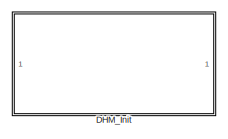
[diagram: root canvas - part 1/5, top left region]
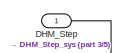
[diagram: root canvas - part 2/5, top center region]
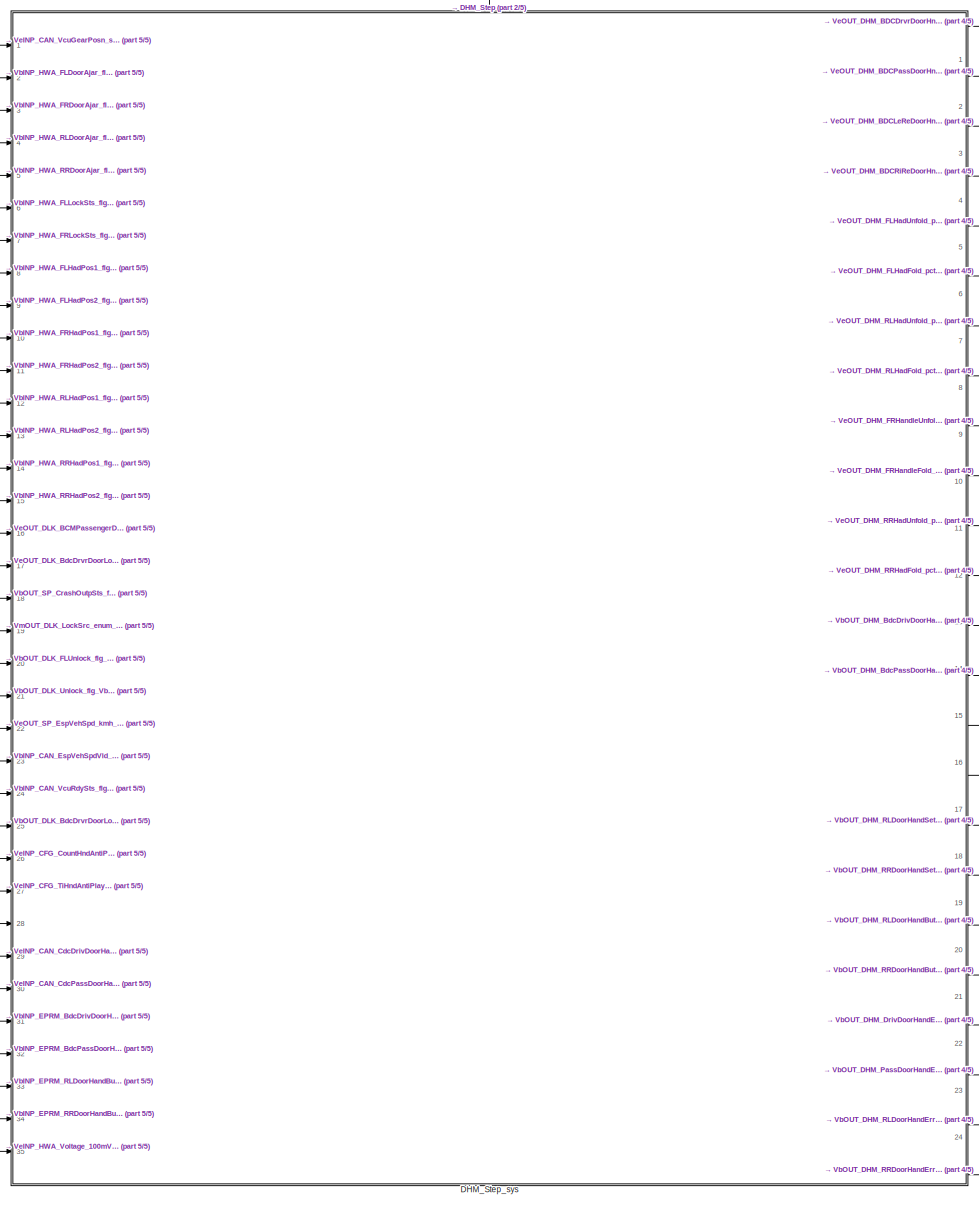
[diagram: root canvas - part 3/5, center side, full height]
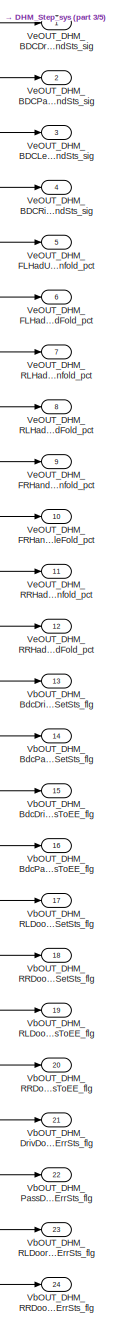
[diagram: root canvas - part 4/5, right side, full height]
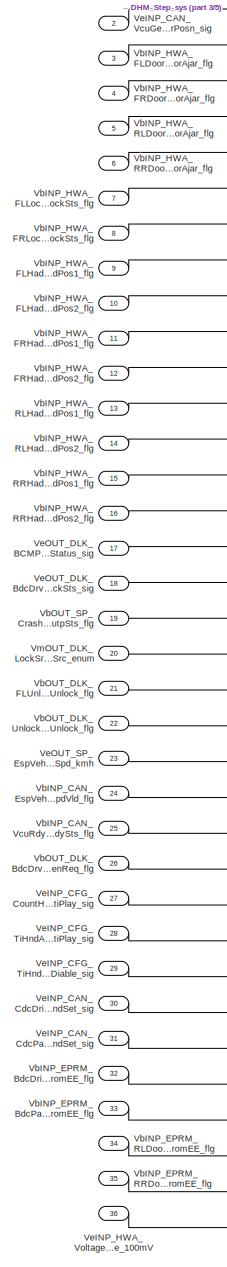
[diagram: root canvas - part 5/5, left side, full height]
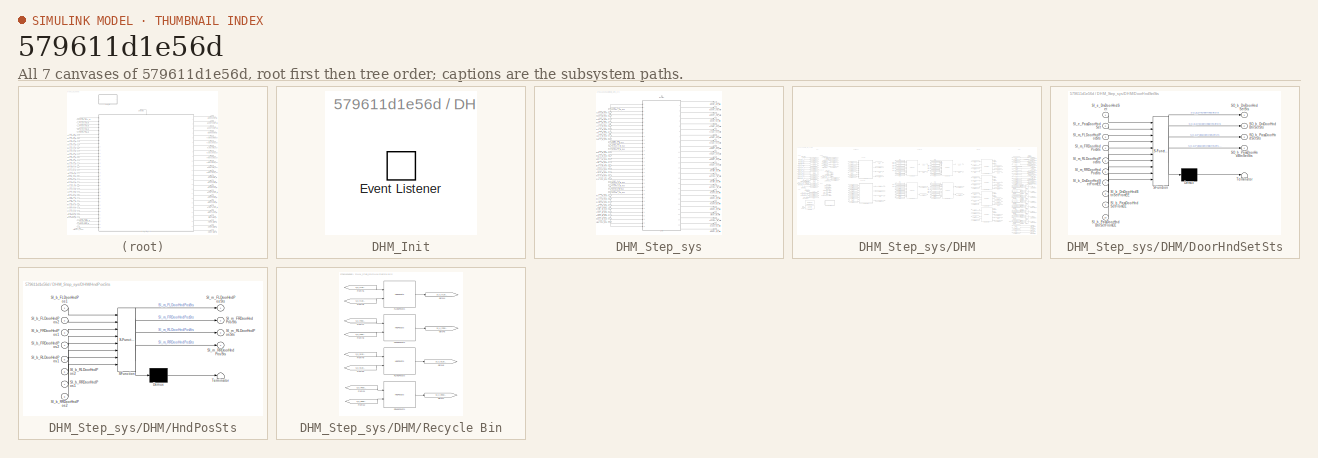
[diagram: thumbnail index - all 7 canvases of the model, root first then tree order]
MODEL slx_579611d1e56d
KIND model
CONFIG AbsTol = auto
CONFIG EnableMultiTasking = off
CONFIG FixedStep = 0.01
CONFIG MaxStep = auto
CONFIG MinStep = auto
CONFIG RelTol = 1e-3
CONFIG SampleTimeConstraint = Unconstrained
CONFIG SolverName = FixedStepDiscrete
CONFIG StartTime = 0.0
CONFIG StopTime = 25
BLOCK [SubSystem] DHM_Init
  Ports = []
  RequestExecContextInheritance = off
BLOCK [EventListener] DHM_Init/Event Listener
  EventName = reset
BLOCK [Inport] DHM_Step
  OutputFunctionCall = on
  SampleTime = 0.01
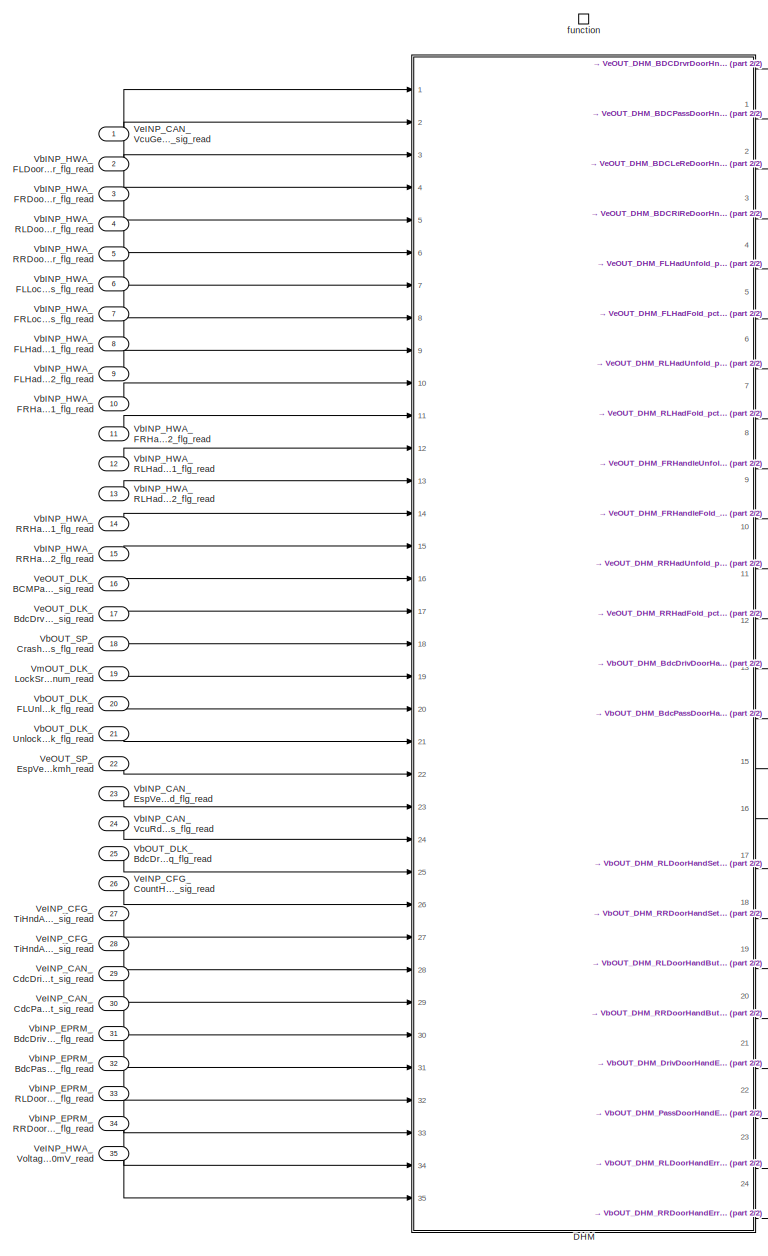
[diagram: DHM_Step_sys - part 1/2, center side, full height]
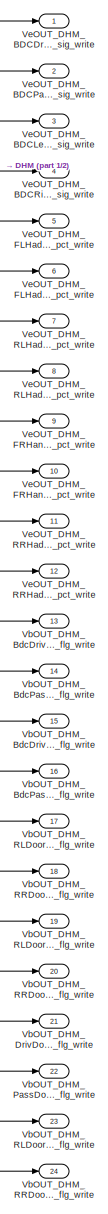
[diagram: DHM_Step_sys - part 2/2, right side, full height]
BLOCK [SubSystem] DHM_Step_sys
  Ports = [35, 24, 0, 1]
  RequestExecContextInheritance = off
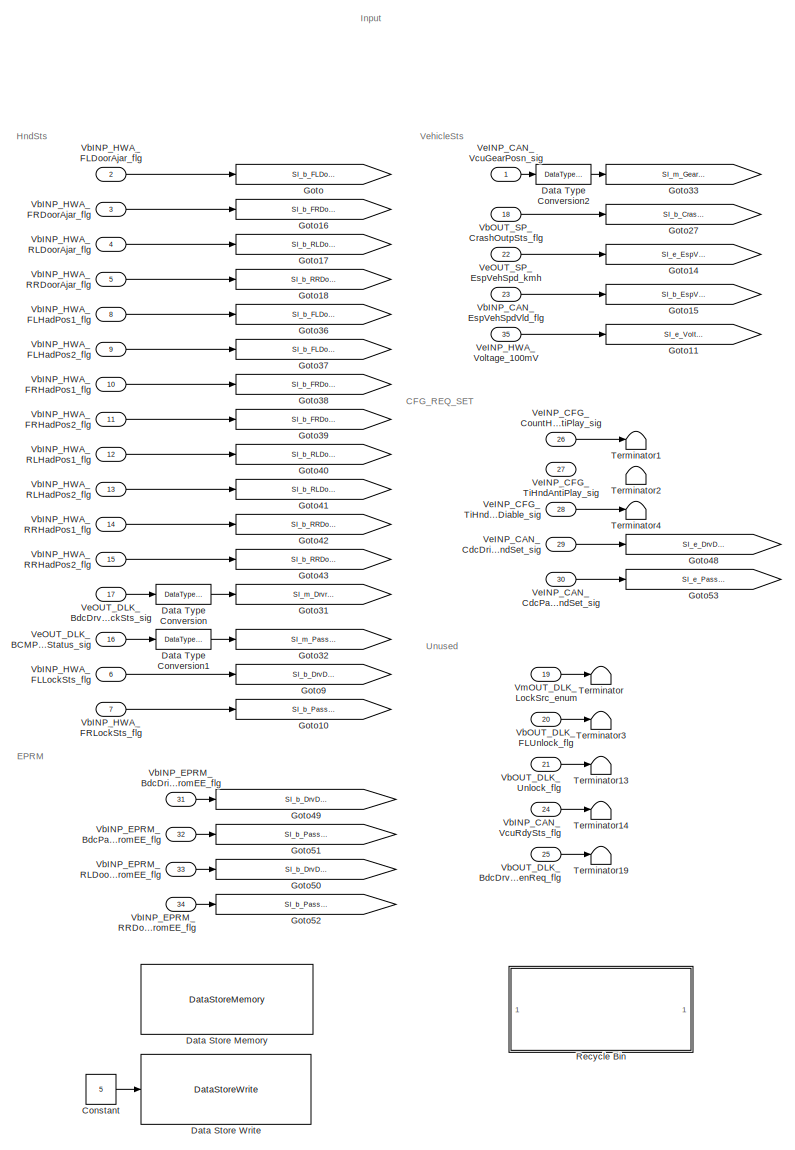
[diagram: DHM_Step_sys/DHM - part 1/7, middle left region]
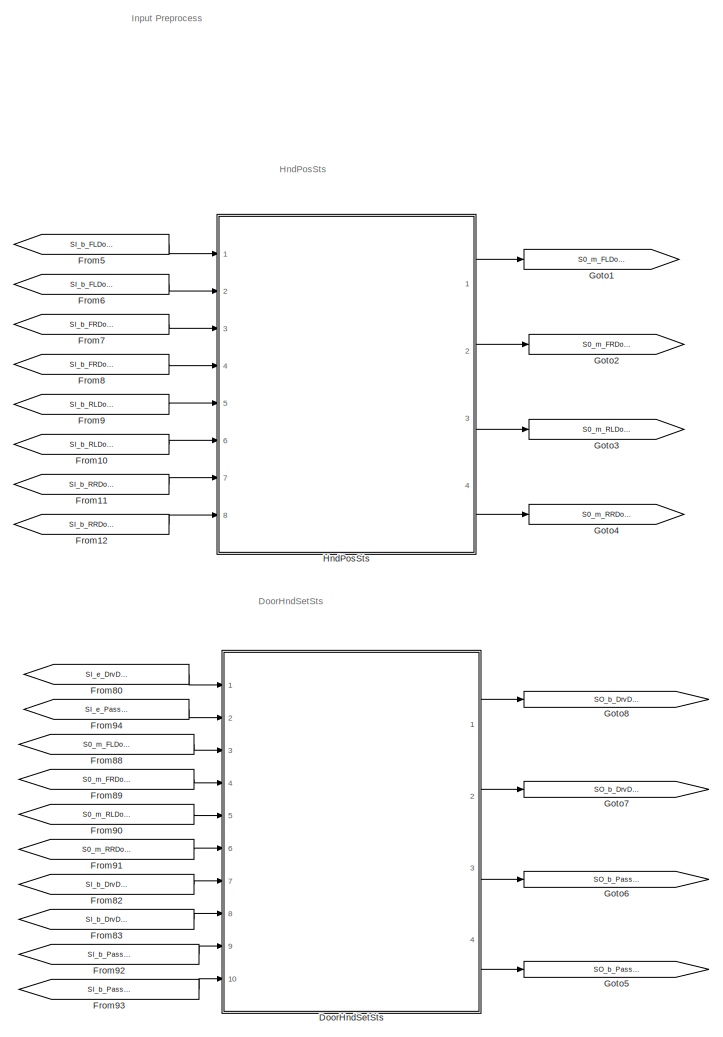
[diagram: DHM_Step_sys/DHM - part 2/7, top left region]
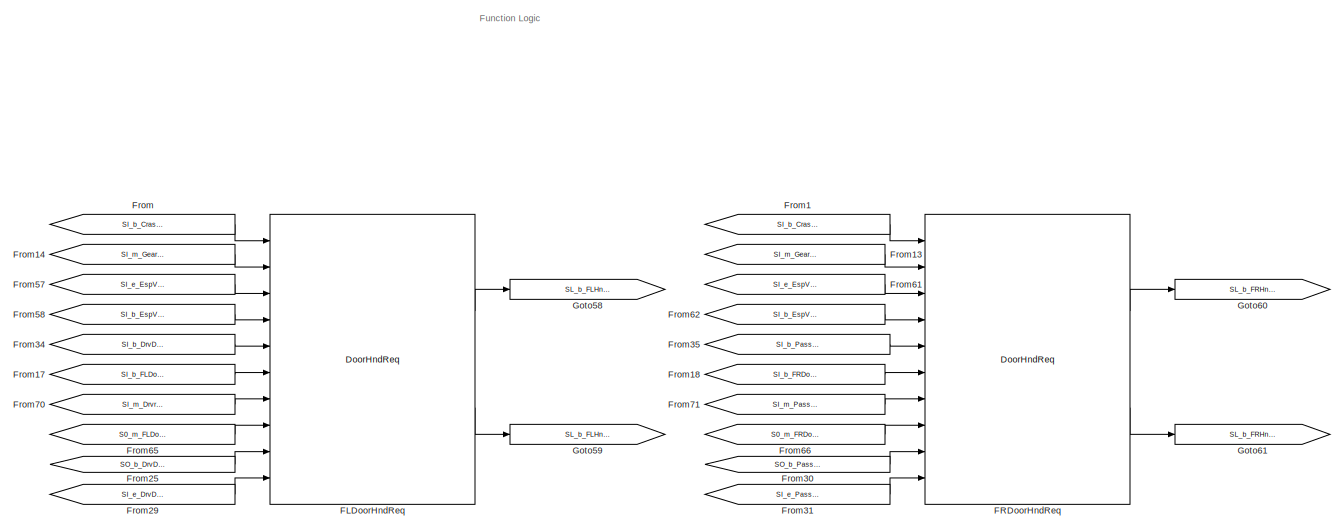
[diagram: DHM_Step_sys/DHM - part 3/7, top center region]
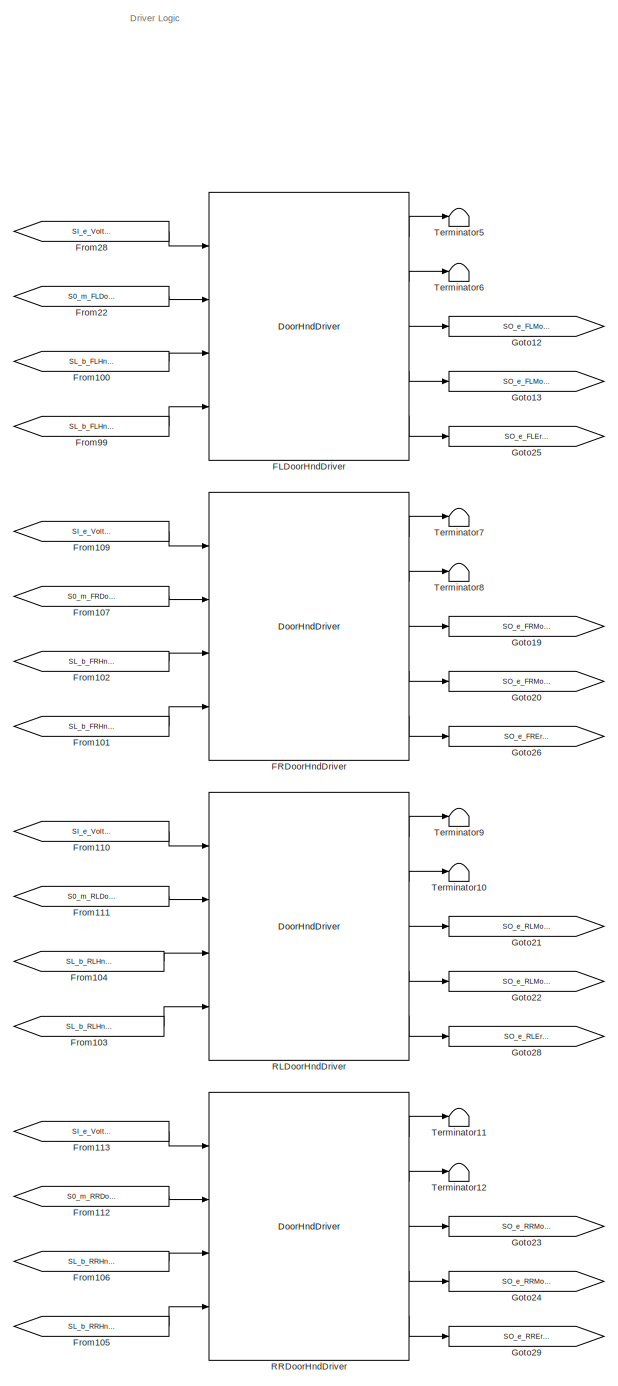
[diagram: DHM_Step_sys/DHM - part 4/7, right side, full height]
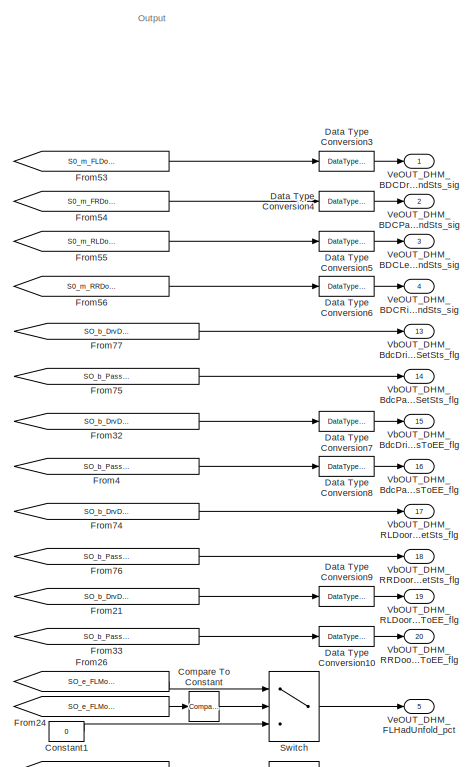
[diagram: DHM_Step_sys/DHM - part 5/7, top right region]
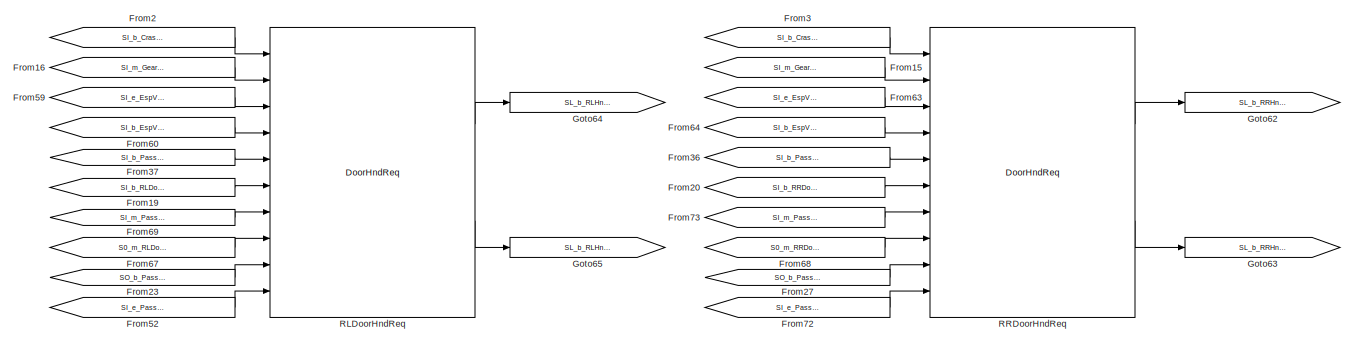
[diagram: DHM_Step_sys/DHM - part 6/7, central region]
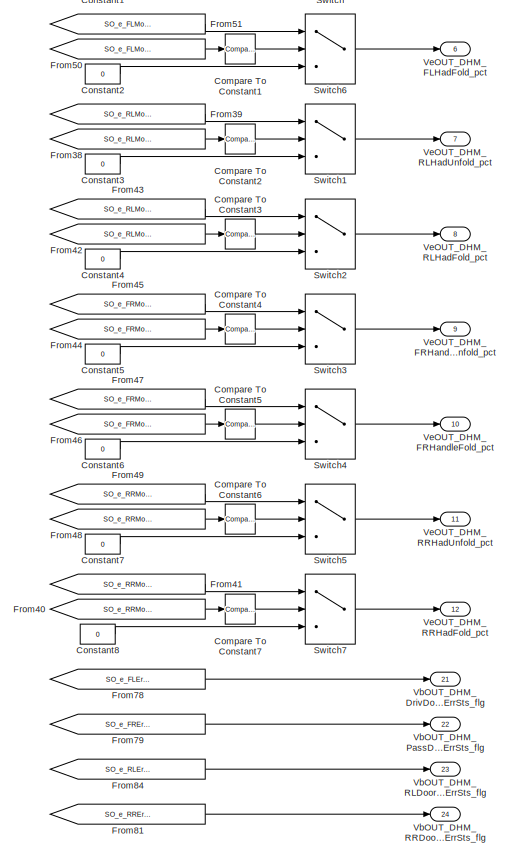
[diagram: DHM_Step_sys/DHM - part 7/7, bottom right region]
BLOCK [SubSystem] DHM_Step_sys/DHM
  Ports = [35, 24]
  RequestExecContextInheritance = off
BLOCK [Reference] DHM_Step_sys/DHM/Compare To Constant  REF=simulink/Logic and Bit
Operations/Compare
To Constant
  Ports = [1, 1]
  SourceBlock = simulink/Logic and Bit\nOperations/Compare\nTo Constant
  SourceProductBaseCode = SL
  SourceType = Compare To Constant
BLOCK [Reference] DHM_Step_sys/DHM/Compare To Constant1  REF=simulink/Logic and Bit
Operations/Compare
To Constant
  Ports = [1, 1]
  SourceBlock = simulink/Logic and Bit\nOperations/Compare\nTo Constant
  SourceProductBaseCode = SL
  SourceType = Compare To Constant
BLOCK [Reference] DHM_Step_sys/DHM/Compare To Constant2  REF=simulink/Logic and Bit
Operations/Compare
To Constant
  Ports = [1, 1]
  SourceBlock = simulink/Logic and Bit\nOperations/Compare\nTo Constant
  SourceProductBaseCode = SL
  SourceType = Compare To Constant
BLOCK [Reference] DHM_Step_sys/DHM/Compare To Constant3  REF=simulink/Logic and Bit
Operations/Compare
To Constant
  Ports = [1, 1]
  SourceBlock = simulink/Logic and Bit\nOperations/Compare\nTo Constant
  SourceProductBaseCode = SL
  SourceType = Compare To Constant
BLOCK [Reference] DHM_Step_sys/DHM/Compare To Constant4  REF=simulink/Logic and Bit
Operations/Compare
To Constant
  Ports = [1, 1]
  SourceBlock = simulink/Logic and Bit\nOperations/Compare\nTo Constant
  SourceProductBaseCode = SL
  SourceType = Compare To Constant
BLOCK [Reference] DHM_Step_sys/DHM/Compare To Constant5  REF=simulink/Logic and Bit
Operations/Compare
To Constant
  Ports = [1, 1]
  SourceBlock = simulink/Logic and Bit\nOperations/Compare\nTo Constant
  SourceProductBaseCode = SL
  SourceType = Compare To Constant
BLOCK [Reference] DHM_Step_sys/DHM/Compare To Constant6  REF=simulink/Logic and Bit
Operations/Compare
To Constant
  Ports = [1, 1]
  SourceBlock = simulink/Logic and Bit\nOperations/Compare\nTo Constant
  SourceProductBaseCode = SL
  SourceType = Compare To Constant
BLOCK [Reference] DHM_Step_sys/DHM/Compare To Constant7  REF=simulink/Logic and Bit
Operations/Compare
To Constant
  Ports = [1, 1]
  SourceBlock = simulink/Logic and Bit\nOperations/Compare\nTo Constant
  SourceProductBaseCode = SL
  SourceType = Compare To Constant
BLOCK [Constant] DHM_Step_sys/DHM/Constant
  OutDataTypeStr = uint8
  Value = 5
BLOCK [Constant] DHM_Step_sys/DHM/Constant1
  Value = 0
BLOCK [Constant] DHM_Step_sys/DHM/Constant2
  Value = 0
BLOCK [Constant] DHM_Step_sys/DHM/Constant3
  Value = 0
BLOCK [Constant] DHM_Step_sys/DHM/Constant4
  Value = 0
BLOCK [Constant] DHM_Step_sys/DHM/Constant5
  Value = 0
BLOCK [Constant] DHM_Step_sys/DHM/Constant6
  Value = 0
BLOCK [Constant] DHM_Step_sys/DHM/Constant7
  Value = 0
BLOCK [Constant] DHM_Step_sys/DHM/Constant8
  Value = 0
BLOCK [DataStoreMemory] DHM_Step_sys/DHM/Data Store Memory
  DataStoreName = E15_DHM
  OutDataTypeStr = uint8
  ShowAdditionalParam = off
  WriteAfterWriteMsg = warning
BLOCK [DataStoreWrite] DHM_Step_sys/DHM/Data Store Write
  DataStoreName = E15_DHM
  IndexOptions = Index vector (dialog)
  Indices = 1
  OutputSizes = 1
  Ports = [1]
BLOCK [DataTypeConversion] DHM_Step_sys/DHM/Data Type Conversion
  OutDataTypeStr = Enum: Door_Sts_E
  RndMeth = Floor
  SaturateOnIntegerOverflow = off
BLOCK [DataTypeConversion] DHM_Step_sys/DHM/Data Type Conversion1
  OutDataTypeStr = Enum: Door_Sts_E
  RndMeth = Floor
  SaturateOnIntegerOverflow = off
BLOCK [DataTypeConversion] DHM_Step_sys/DHM/Data Type Conversion10
  OutDataTypeStr = boolean
  RndMeth = Floor
  SaturateOnIntegerOverflow = off
BLOCK [DataTypeConversion] DHM_Step_sys/DHM/Data Type Conversion2
  OutDataTypeStr = Enum: Gear_Posn_E
  RndMeth = Floor
  SaturateOnIntegerOverflow = off
BLOCK [DataTypeConversion] DHM_Step_sys/DHM/Data Type Conversion3
  OutDataTypeStr = uint8
  RndMeth = Floor
  SaturateOnIntegerOverflow = off
BLOCK [DataTypeConversion] DHM_Step_sys/DHM/Data Type Conversion4
  OutDataTypeStr = uint8
  RndMeth = Floor
  SaturateOnIntegerOverflow = off
BLOCK [DataTypeConversion] DHM_Step_sys/DHM/Data Type Conversion5
  OutDataTypeStr = uint8
  RndMeth = Floor
  SaturateOnIntegerOverflow = off
BLOCK [DataTypeConversion] DHM_Step_sys/DHM/Data Type Conversion6
  OutDataTypeStr = uint8
  RndMeth = Floor
  SaturateOnIntegerOverflow = off
BLOCK [DataTypeConversion] DHM_Step_sys/DHM/Data Type Conversion7
  OutDataTypeStr = boolean
  RndMeth = Floor
  SaturateOnIntegerOverflow = off
BLOCK [DataTypeConversion] DHM_Step_sys/DHM/Data Type Conversion8
  OutDataTypeStr = boolean
  RndMeth = Floor
  SaturateOnIntegerOverflow = off
BLOCK [DataTypeConversion] DHM_Step_sys/DHM/Data Type Conversion9
  OutDataTypeStr = boolean
  RndMeth = Floor
  SaturateOnIntegerOverflow = off
BLOCK [SubSystem] DHM_Step_sys/DHM/DoorHndSetSts
  ErrorFcn = Stateflow.Translate.translate
  PermitHierarchicalResolution = ExplicitOnly
  Ports = [10, 4]
  RequestExecContextInheritance = off
  SFBlockType = Chart
  TreatAsAtomicUnit = on
BLOCK [Demux] DHM_Step_sys/DHM/DoorHndSetSts/ Demux 
  Outputs = 1
  Ports = [1, 1]
BLOCK [S-Function] DHM_Step_sys/DHM/DoorHndSetSts/ SFunction 
  EnableBusSupport = on
  FunctionName = sf_sfun
  PortCounts = [10 5]
  Ports = [10, 5]
  SFcnIsStateOwnerBlock = off
  SFunctionDeploymentMode = off
  Tag = Stateflow S-Function 1
BLOCK [Terminator] DHM_Step_sys/DHM/DoorHndSetSts/ Terminator 
BLOCK [Inport] DHM_Step_sys/DHM/DoorHndSetSts/SI_b_DrvDoorHndBtnSetFromEE
  Port = 8
BLOCK [Inport] DHM_Step_sys/DHM/DoorHndSetSts/SI_b_DrvDoorHndSetFromEE
  Port = 7
BLOCK [Inport] DHM_Step_sys/DHM/DoorHndSetSts/SI_b_PassDoorHndBtnSetFromEE
  Port = 10
BLOCK [Inport] DHM_Step_sys/DHM/DoorHndSetSts/SI_b_PassDoorHndSetFromEE
  Port = 9
BLOCK [Inport] DHM_Step_sys/DHM/DoorHndSetSts/SI_e_DrvDoorHndSet
BLOCK [Inport] DHM_Step_sys/DHM/DoorHndSetSts/SI_e_PassDoorHndSet
  Port = 2
BLOCK [Inport] DHM_Step_sys/DHM/DoorHndSetSts/SI_m_FLDoorHndPosSts
  Port = 3
BLOCK [Inport] DHM_Step_sys/DHM/DoorHndSetSts/SI_m_FRDoorHndPosSts
  Port = 4
BLOCK [Inport] DHM_Step_sys/DHM/DoorHndSetSts/SI_m_RLDoorHndPosSts
  Port = 5
BLOCK [Inport] DHM_Step_sys/DHM/DoorHndSetSts/SI_m_RRDoorHndPosSts
  Port = 6
BLOCK [Outport] DHM_Step_sys/DHM/DoorHndSetSts/SO_b_DrvDoorHndBtnSetSts
  Port = 2
BLOCK [Outport] DHM_Step_sys/DHM/DoorHndSetSts/SO_b_DrvDoorHndSetSts
BLOCK [Outport] DHM_Step_sys/DHM/DoorHndSetSts/SO_b_PassDoorHndBtnSetSts
  Port = 4
BLOCK [Outport] DHM_Step_sys/DHM/DoorHndSetSts/SO_b_PassDoorHndSetSts
  Port = 3
BLOCK [Reference] DHM_Step_sys/DHM/FLDoorHndDriver  REF=DoorHndDriver/DoorHndDriver
  Ports = [4, 5]
  SourceBlock = DoorHndDriver/DoorHndDriver
  SourceType = SubSystem
BLOCK [Reference] DHM_Step_sys/DHM/FLDoorHndReq  REF=DoorHndReq/DoorHndReq
  Ports = [10, 2]
  SourceBlock = DoorHndReq/DoorHndReq
  SourceType = SubSystem
BLOCK [Reference] DHM_Step_sys/DHM/FRDoorHndDriver  REF=DoorHndDriver/DoorHndDriver
  Ports = [4, 5]
  SourceBlock = DoorHndDriver/DoorHndDriver
  SourceType = SubSystem
BLOCK [Reference] DHM_Step_sys/DHM/FRDoorHndReq  REF=DoorHndReq/DoorHndReq
  Ports = [10, 2]
  SourceBlock = DoorHndReq/DoorHndReq
  SourceType = SubSystem
BLOCK [From] DHM_Step_sys/DHM/From
  GotoTag = SI_b_CrashOutpSts
BLOCK [From] DHM_Step_sys/DHM/From1
  GotoTag = SI_b_CrashOutpSts
BLOCK [From] DHM_Step_sys/DHM/From10
  GotoTag = SI_b_RLDoorHndPos2
BLOCK [From] DHM_Step_sys/DHM/From100
  GotoTag = SL_b_FLHndFoldReq
BLOCK [From] DHM_Step_sys/DHM/From101
  GotoTag = SL_b_FRHndUnfoldReq
BLOCK [From] DHM_Step_sys/DHM/From102
  GotoTag = SL_b_FRHndFoldReq
BLOCK [From] DHM_Step_sys/DHM/From103
  GotoTag = SL_b_RLHndUnfoldReq
BLOCK [From] DHM_Step_sys/DHM/From104
  GotoTag = SL_b_RLHndFoldReq
BLOCK [From] DHM_Step_sys/DHM/From105
  GotoTag = SL_b_RRHndUnfoldReq
BLOCK [From] DHM_Step_sys/DHM/From106
  GotoTag = SL_b_RRHndFoldReq
BLOCK [From] DHM_Step_sys/DHM/From107
  GotoTag = S0_m_FRDoorHndPosSts
BLOCK [From] DHM_Step_sys/DHM/From109
  GotoTag = SI_e_Volt100mV
BLOCK [From] DHM_Step_sys/DHM/From11
  GotoTag = SI_b_RRDoorHndPos1
BLOCK [From] DHM_Step_sys/DHM/From110
  GotoTag = SI_e_Volt100mV
BLOCK [From] DHM_Step_sys/DHM/From111
  GotoTag = S0_m_RLDoorHndPosSts
BLOCK [From] DHM_Step_sys/DHM/From112
  GotoTag = S0_m_RRDoorHndPosSts
BLOCK [From] DHM_Step_sys/DHM/From113
  GotoTag = SI_e_Volt100mV
BLOCK [From] DHM_Step_sys/DHM/From12
  GotoTag = SI_b_RRDoorHndPos2
BLOCK [From] DHM_Step_sys/DHM/From13
  GotoTag = SI_m_GearPosn
BLOCK [From] DHM_Step_sys/DHM/From14
  GotoTag = SI_m_GearPosn
BLOCK [From] DHM_Step_sys/DHM/From15
  GotoTag = SI_m_GearPosn
BLOCK [From] DHM_Step_sys/DHM/From16
  GotoTag = SI_m_GearPosn
BLOCK [From] DHM_Step_sys/DHM/From17
  GotoTag = SI_b_FLDoorOpen
BLOCK [From] DHM_Step_sys/DHM/From18
  GotoTag = SI_b_FRDoorOpen
BLOCK [From] DHM_Step_sys/DHM/From19
  GotoTag = SI_b_RLDoorOpen
BLOCK [From] DHM_Step_sys/DHM/From2
  GotoTag = SI_b_CrashOutpSts
BLOCK [From] DHM_Step_sys/DHM/From20
  GotoTag = SI_b_RRDoorOpen
BLOCK [From] DHM_Step_sys/DHM/From21
  GotoTag = SO_b_DrvDoorHndBtnSetSts
BLOCK [From] DHM_Step_sys/DHM/From22
  GotoTag = S0_m_FLDoorHndPosSts
BLOCK [From] DHM_Step_sys/DHM/From23
  GotoTag = SO_b_PassDoorHndSetSts
BLOCK [From] DHM_Step_sys/DHM/From24
  GotoTag = SO_e_FLMotorCmd
BLOCK [From] DHM_Step_sys/DHM/From25
  GotoTag = SO_b_DrvDoorHndSetSts
BLOCK [From] DHM_Step_sys/DHM/From26
  GotoTag = SO_e_FLMotorPwm
BLOCK [From] DHM_Step_sys/DHM/From27
  GotoTag = SO_b_PassDoorHndSetSts
BLOCK [From] DHM_Step_sys/DHM/From28
  GotoTag = SI_e_Volt100mV
BLOCK [From] DHM_Step_sys/DHM/From29
  GotoTag = SI_e_DrvDoorHndSet
BLOCK [From] DHM_Step_sys/DHM/From3
  GotoTag = SI_b_CrashOutpSts
BLOCK [From] DHM_Step_sys/DHM/From30
  GotoTag = SO_b_PassDoorHndSetSts
BLOCK [From] DHM_Step_sys/DHM/From31
  GotoTag = SI_e_PassDoorHndSet
BLOCK [From] DHM_Step_sys/DHM/From32
  GotoTag = SO_b_DrvDoorHndSetSts
BLOCK [From] DHM_Step_sys/DHM/From33
  GotoTag = SO_b_PassDoorHndBtnSetSts
BLOCK [From] DHM_Step_sys/DHM/From34
  GotoTag = SI_b_DrvDoorLock
BLOCK [From] DHM_Step_sys/DHM/From35
  GotoTag = SI_b_PassDoorLock
BLOCK [From] DHM_Step_sys/DHM/From36
  GotoTag = SI_b_PassDoorLock
BLOCK [From] DHM_Step_sys/DHM/From37
  GotoTag = SI_b_PassDoorLock
BLOCK [From] DHM_Step_sys/DHM/From38
  GotoTag = SO_e_RLMotorCmd
BLOCK [From] DHM_Step_sys/DHM/From39
  GotoTag = SO_e_RLMotorPwm
BLOCK [From] DHM_Step_sys/DHM/From4
  GotoTag = SO_b_PassDoorHndSetSts
BLOCK [From] DHM_Step_sys/DHM/From40
  GotoTag = SO_e_RRMotorCmd
BLOCK [From] DHM_Step_sys/DHM/From41
  GotoTag = SO_e_RRMotorPwm
BLOCK [From] DHM_Step_sys/DHM/From42
  GotoTag = SO_e_RLMotorCmd
BLOCK [From] DHM_Step_sys/DHM/From43
  GotoTag = SO_e_RLMotorPwm
BLOCK [From] DHM_Step_sys/DHM/From44
  GotoTag = SO_e_FRMotorCmd
BLOCK [From] DHM_Step_sys/DHM/From45
  GotoTag = SO_e_FRMotorPwm
BLOCK [From] DHM_Step_sys/DHM/From46
  GotoTag = SO_e_FRMotorCmd
BLOCK [From] DHM_Step_sys/DHM/From47
  GotoTag = SO_e_FRMotorPwm
BLOCK [From] DHM_Step_sys/DHM/From48
  GotoTag = SO_e_RRMotorCmd
BLOCK [From] DHM_Step_sys/DHM/From49
  GotoTag = SO_e_RRMotorPwm
BLOCK [From] DHM_Step_sys/DHM/From5
  GotoTag = SI_b_FLDoorHndPos1
BLOCK [From] DHM_Step_sys/DHM/From50
  GotoTag = SO_e_FLMotorCmd
BLOCK [From] DHM_Step_sys/DHM/From51
  GotoTag = SO_e_FLMotorPwm
BLOCK [From] DHM_Step_sys/DHM/From52
  GotoTag = SI_e_PassDoorHndSet
BLOCK [From] DHM_Step_sys/DHM/From53
  GotoTag = S0_m_FLDoorHndPosSts
BLOCK [From] DHM_Step_sys/DHM/From54
  GotoTag = S0_m_FRDoorHndPosSts
BLOCK [From] DHM_Step_sys/DHM/From55
  GotoTag = S0_m_RLDoorHndPosSts
BLOCK [From] DHM_Step_sys/DHM/From56
  GotoTag = S0_m_RRDoorHndPosSts
BLOCK [From] DHM_Step_sys/DHM/From57
  GotoTag = SI_e_EspVehSpd
BLOCK [From] DHM_Step_sys/DHM/From58
  GotoTag = SI_b_EspVehSpdVld
BLOCK [From] DHM_Step_sys/DHM/From59
  GotoTag = SI_e_EspVehSpd
BLOCK [From] DHM_Step_sys/DHM/From6
  GotoTag = SI_b_FLDoorHndPos2
BLOCK [From] DHM_Step_sys/DHM/From60
  GotoTag = SI_b_EspVehSpdVld
BLOCK [From] DHM_Step_sys/DHM/From61
  GotoTag = SI_e_EspVehSpd
BLOCK [From] DHM_Step_sys/DHM/From62
  GotoTag = SI_b_EspVehSpdVld
BLOCK [From] DHM_Step_sys/DHM/From63
  GotoTag = SI_e_EspVehSpd
BLOCK [From] DHM_Step_sys/DHM/From64
  GotoTag = SI_b_EspVehSpdVld
BLOCK [From] DHM_Step_sys/DHM/From65
  GotoTag = S0_m_FLDoorHndPosSts
BLOCK [From] DHM_Step_sys/DHM/From66
  GotoTag = S0_m_FRDoorHndPosSts
BLOCK [From] DHM_Step_sys/DHM/From67
  GotoTag = S0_m_RLDoorHndPosSts
BLOCK [From] DHM_Step_sys/DHM/From68
  GotoTag = S0_m_RRDoorHndPosSts
BLOCK [From] DHM_Step_sys/DHM/From69
  GotoTag = SI_m_PassDoorLckSts
BLOCK [From] DHM_Step_sys/DHM/From7
  GotoTag = SI_b_FRDoorHndPos1
BLOCK [From] DHM_Step_sys/DHM/From70
  GotoTag = SI_m_DrvrDoorLckSts
BLOCK [From] DHM_Step_sys/DHM/From71
  GotoTag = SI_m_PassDoorLckSts
BLOCK [From] DHM_Step_sys/DHM/From72
  GotoTag = SI_e_PassDoorHndSet
BLOCK [From] DHM_Step_sys/DHM/From73
  GotoTag = SI_m_PassDoorLckSts
BLOCK [From] DHM_Step_sys/DHM/From74
  GotoTag = SO_b_DrvDoorHndBtnSetSts
BLOCK [From] DHM_Step_sys/DHM/From75
  GotoTag = SO_b_PassDoorHndSetSts
BLOCK [From] DHM_Step_sys/DHM/From76
  GotoTag = SO_b_PassDoorHndBtnSetSts
BLOCK [From] DHM_Step_sys/DHM/From77
  GotoTag = SO_b_DrvDoorHndSetSts
BLOCK [From] DHM_Step_sys/DHM/From78
  GotoTag = SO_e_FLError
BLOCK [From] DHM_Step_sys/DHM/From79
  GotoTag = SO_e_FRError
BLOCK [From] DHM_Step_sys/DHM/From8
  GotoTag = SI_b_FRDoorHndPos2
BLOCK [From] DHM_Step_sys/DHM/From80
  GotoTag = SI_e_DrvDoorHndSet
BLOCK [From] DHM_Step_sys/DHM/From81
  GotoTag = SO_e_RRError
BLOCK [From] DHM_Step_sys/DHM/From82
  GotoTag = SI_b_DrvDoorHndSetFromEE
BLOCK [From] DHM_Step_sys/DHM/From83
  GotoTag = SI_b_DrvDoorHndBtnSetFromEE
BLOCK [From] DHM_Step_sys/DHM/From84
  GotoTag = SO_e_RLError
BLOCK [From] DHM_Step_sys/DHM/From88
  GotoTag = S0_m_FLDoorHndPosSts
BLOCK [From] DHM_Step_sys/DHM/From89
  GotoTag = S0_m_FRDoorHndPosSts
BLOCK [From] DHM_Step_sys/DHM/From9
  GotoTag = SI_b_RLDoorHndPos1
BLOCK [From] DHM_Step_sys/DHM/From90
  GotoTag = S0_m_RLDoorHndPosSts
BLOCK [From] DHM_Step_sys/DHM/From91
  GotoTag = S0_m_RRDoorHndPosSts
BLOCK [From] DHM_Step_sys/DHM/From92
  GotoTag = SI_b_PassDoorHndSetFromEE
BLOCK [From] DHM_Step_sys/DHM/From93
  GotoTag = SI_b_PassDoorHndBtnSetFromEE
BLOCK [From] DHM_Step_sys/DHM/From94
  GotoTag = SI_e_PassDoorHndSet
BLOCK [From] DHM_Step_sys/DHM/From99
  GotoTag = SL_b_FLHndUnfoldReq
BLOCK [Goto] DHM_Step_sys/DHM/Goto
  GotoTag = SI_b_FLDoorOpen
BLOCK [Goto] DHM_Step_sys/DHM/Goto1
  GotoTag = S0_m_FLDoorHndPosSts
BLOCK [Goto] DHM_Step_sys/DHM/Goto10
  GotoTag = SI_b_PassDoorLock
BLOCK [Goto] DHM_Step_sys/DHM/Goto11
  GotoTag = SI_e_Volt100mV
BLOCK [Goto] DHM_Step_sys/DHM/Goto12
  GotoTag = SO_e_FLMotorCmd
BLOCK [Goto] DHM_Step_sys/DHM/Goto13
  GotoTag = SO_e_FLMotorPwm
BLOCK [Goto] DHM_Step_sys/DHM/Goto14
  GotoTag = SI_e_EspVehSpd
BLOCK [Goto] DHM_Step_sys/DHM/Goto15
  GotoTag = SI_b_EspVehSpdVld
BLOCK [Goto] DHM_Step_sys/DHM/Goto16
  GotoTag = SI_b_FRDoorOpen
BLOCK [Goto] DHM_Step_sys/DHM/Goto17
  GotoTag = SI_b_RLDoorOpen
BLOCK [Goto] DHM_Step_sys/DHM/Goto18
  GotoTag = SI_b_RRDoorOpen
BLOCK [Goto] DHM_Step_sys/DHM/Goto19
  GotoTag = SO_e_FRMotorCmd
BLOCK [Goto] DHM_Step_sys/DHM/Goto2
  GotoTag = S0_m_FRDoorHndPosSts
BLOCK [Goto] DHM_Step_sys/DHM/Goto20
  GotoTag = SO_e_FRMotorPwm
BLOCK [Goto] DHM_Step_sys/DHM/Goto21
  GotoTag = SO_e_RLMotorCmd
BLOCK [Goto] DHM_Step_sys/DHM/Goto22
  GotoTag = SO_e_RLMotorPwm
BLOCK [Goto] DHM_Step_sys/DHM/Goto23
  GotoTag = SO_e_RRMotorCmd
BLOCK [Goto] DHM_Step_sys/DHM/Goto24
  GotoTag = SO_e_RRMotorPwm
BLOCK [Goto] DHM_Step_sys/DHM/Goto25
  GotoTag = SO_e_FLError
BLOCK [Goto] DHM_Step_sys/DHM/Goto26
  GotoTag = SO_e_FRError
BLOCK [Goto] DHM_Step_sys/DHM/Goto27
  GotoTag = SI_b_CrashOutpSts
BLOCK [Goto] DHM_Step_sys/DHM/Goto28
  GotoTag = SO_e_RLError
BLOCK [Goto] DHM_Step_sys/DHM/Goto29
  GotoTag = SO_e_RRError
BLOCK [Goto] DHM_Step_sys/DHM/Goto3
  GotoTag = S0_m_RLDoorHndPosSts
BLOCK [Goto] DHM_Step_sys/DHM/Goto31
  GotoTag = SI_m_DrvrDoorLckSts
BLOCK [Goto] DHM_Step_sys/DHM/Goto32
  GotoTag = SI_m_PassDoorLckSts
BLOCK [Goto] DHM_Step_sys/DHM/Goto33
  GotoTag = SI_m_GearPosn
BLOCK [Goto] DHM_Step_sys/DHM/Goto36
  GotoTag = SI_b_FLDoorHndPos1
BLOCK [Goto] DHM_Step_sys/DHM/Goto37
  GotoTag = SI_b_FLDoorHndPos2
BLOCK [Goto] DHM_Step_sys/DHM/Goto38
  GotoTag = SI_b_FRDoorHndPos1
BLOCK [Goto] DHM_Step_sys/DHM/Goto39
  GotoTag = SI_b_FRDoorHndPos2
BLOCK [Goto] DHM_Step_sys/DHM/Goto4
  GotoTag = S0_m_RRDoorHndPosSts
BLOCK [Goto] DHM_Step_sys/DHM/Goto40
  GotoTag = SI_b_RLDoorHndPos1
BLOCK [Goto] DHM_Step_sys/DHM/Goto41
  GotoTag = SI_b_RLDoorHndPos2
BLOCK [Goto] DHM_Step_sys/DHM/Goto42
  GotoTag = SI_b_RRDoorHndPos1
BLOCK [Goto] DHM_Step_sys/DHM/Goto43
  GotoTag = SI_b_RRDoorHndPos2
BLOCK [Goto] DHM_Step_sys/DHM/Goto48
  GotoTag = SI_e_DrvDoorHndSet
BLOCK [Goto] DHM_Step_sys/DHM/Goto49
  GotoTag = SI_b_DrvDoorHndSetFromEE
BLOCK [Goto] DHM_Step_sys/DHM/Goto5
  GotoTag = SO_b_PassDoorHndBtnSetSts
BLOCK [Goto] DHM_Step_sys/DHM/Goto50
  GotoTag = SI_b_DrvDoorHndBtnSetFromEE
BLOCK [Goto] DHM_Step_sys/DHM/Goto51
  GotoTag = SI_b_PassDoorHndSetFromEE
BLOCK [Goto] DHM_Step_sys/DHM/Goto52
  GotoTag = SI_b_PassDoorHndBtnSetFromEE
BLOCK [Goto] DHM_Step_sys/DHM/Goto53
  GotoTag = SI_e_PassDoorHndSet
BLOCK [Goto] DHM_Step_sys/DHM/Goto58
  GotoTag = SL_b_FLHndUnfoldReq
BLOCK [Goto] DHM_Step_sys/DHM/Goto59
  GotoTag = SL_b_FLHndFoldReq
BLOCK [Goto] DHM_Step_sys/DHM/Goto6
  GotoTag = SO_b_PassDoorHndSetSts
BLOCK [Goto] DHM_Step_sys/DHM/Goto60
  GotoTag = SL_b_FRHndUnfoldReq
BLOCK [Goto] DHM_Step_sys/DHM/Goto61
  GotoTag = SL_b_FRHndFoldReq
BLOCK [Goto] DHM_Step_sys/DHM/Goto62
  GotoTag = SL_b_RRHndUnfoldReq
BLOCK [Goto] DHM_Step_sys/DHM/Goto63
  GotoTag = SL_b_RRHndFoldReq
BLOCK [Goto] DHM_Step_sys/DHM/Goto64
  GotoTag = SL_b_RLHndUnfoldReq
BLOCK [Goto] DHM_Step_sys/DHM/Goto65
  GotoTag = SL_b_RLHndFoldReq
BLOCK [Goto] DHM_Step_sys/DHM/Goto7
  GotoTag = SO_b_DrvDoorHndBtnSetSts
BLOCK [Goto] DHM_Step_sys/DHM/Goto8
  GotoTag = SO_b_DrvDoorHndSetSts
BLOCK [Goto] DHM_Step_sys/DHM/Goto9
  GotoTag = SI_b_DrvDoorLock
BLOCK [SubSystem] DHM_Step_sys/DHM/HndPosSts
  ErrorFcn = Stateflow.Translate.translate
  PermitHierarchicalResolution = ExplicitOnly
  Ports = [8, 4]
  RequestExecContextInheritance = off
  SFBlockType = Chart
  TreatAsAtomicUnit = on
BLOCK [Demux] DHM_Step_sys/DHM/HndPosSts/ Demux 
  Outputs = 1
  Ports = [1, 1]
BLOCK [S-Function] DHM_Step_sys/DHM/HndPosSts/ SFunction 
  EnableBusSupport = on
  FunctionName = sf_sfun
  PortCounts = [8 5]
  Ports = [8, 5]
  SFcnIsStateOwnerBlock = off
  SFunctionDeploymentMode = off
  Tag = Stateflow S-Function 3
BLOCK [Terminator] DHM_Step_sys/DHM/HndPosSts/ Terminator 
BLOCK [Inport] DHM_Step_sys/DHM/HndPosSts/SI_b_FLDoorHndPos1
BLOCK [Inport] DHM_Step_sys/DHM/HndPosSts/SI_b_FLDoorHndPos2
  Port = 2
BLOCK [Inport] DHM_Step_sys/DHM/HndPosSts/SI_b_FRDoorHndPos1
  Port = 3
BLOCK [Inport] DHM_Step_sys/DHM/HndPosSts/SI_b_FRDoorHndPos2
  Port = 4
BLOCK [Inport] DHM_Step_sys/DHM/HndPosSts/SI_b_RLDoorHndPos1
  Port = 5
BLOCK [Inport] DHM_Step_sys/DHM/HndPosSts/SI_b_RLDoorHndPos2
  Port = 6
BLOCK [Inport] DHM_Step_sys/DHM/HndPosSts/SI_b_RRDoorHndPos1
  Port = 7
BLOCK [Inport] DHM_Step_sys/DHM/HndPosSts/SI_b_RRDoorHndPos2
  Port = 8
BLOCK [Outport] DHM_Step_sys/DHM/HndPosSts/SI_m_FLDoorHndPosSts
BLOCK [Outport] DHM_Step_sys/DHM/HndPosSts/SI_m_FRDoorHndPosSts
  Port = 2
BLOCK [Outport] DHM_Step_sys/DHM/HndPosSts/SI_m_RLDoorHndPosSts
  Port = 3
BLOCK [Outport] DHM_Step_sys/DHM/HndPosSts/SI_m_RRDoorHndPosSts
  Port = 4
BLOCK [Reference] DHM_Step_sys/DHM/RLDoorHndDriver  REF=DoorHndDriver/DoorHndDriver
  Ports = [4, 5]
  SourceBlock = DoorHndDriver/DoorHndDriver
  SourceType = SubSystem
BLOCK [Reference] DHM_Step_sys/DHM/RLDoorHndReq  REF=DoorHndReq/DoorHndReq
  Ports = [10, 2]
  SourceBlock = DoorHndReq/DoorHndReq
  SourceType = SubSystem
BLOCK [Reference] DHM_Step_sys/DHM/RRDoorHndDriver  REF=DoorHndDriver/DoorHndDriver
  Ports = [4, 5]
  SourceBlock = DoorHndDriver/DoorHndDriver
  SourceType = SubSystem
BLOCK [Reference] DHM_Step_sys/DHM/RRDoorHndReq  REF=DoorHndReq/DoorHndReq
  Ports = [10, 2]
  SourceBlock = DoorHndReq/DoorHndReq
  SourceType = SubSystem
BLOCK [SubSystem] DHM_Step_sys/DHM/Recycle Bin
  Ports = []
  RequestExecContextInheritance = off
BLOCK [Reference] DHM_Step_sys/DHM/Recycle Bin/FLHndPosSts  REF=DoorHndPosSts/HndPosSts
  Commented = on
  Ports = [2, 1]
  SourceBlock = DoorHndPosSts/HndPosSts
  SourceType = SubSystem
BLOCK [Reference] DHM_Step_sys/DHM/Recycle Bin/FRHndPosSts  REF=DoorHndPosSts/HndPosSts
  Commented = on
  Ports = [2, 1]
  SourceBlock = DoorHndPosSts/HndPosSts
  SourceType = SubSystem
BLOCK [From] DHM_Step_sys/DHM/Recycle Bin/From45
  Commented = on
  GotoTag = SI_b_FLDoorHndPos1
BLOCK [From] DHM_Step_sys/DHM/Recycle Bin/From46
  Commented = on
  GotoTag = SI_b_FLDoorHndPos2
BLOCK [From] DHM_Step_sys/DHM/Recycle Bin/From47
  Commented = on
  GotoTag = SI_b_FRDoorHndPos1
BLOCK [From] DHM_Step_sys/DHM/Recycle Bin/From48
  Commented = on
  GotoTag = SI_b_FRDoorHndPos2
BLOCK [From] DHM_Step_sys/DHM/Recycle Bin/From49
  Commented = on
  GotoTag = SI_b_RLDoorHndPos1
BLOCK [From] DHM_Step_sys/DHM/Recycle Bin/From50
  Commented = on
  GotoTag = SI_b_RLDoorHndPos2
BLOCK [From] DHM_Step_sys/DHM/Recycle Bin/From51
  Commented = on
  GotoTag = SI_b_RRDoorHndPos1
BLOCK [From] DHM_Step_sys/DHM/Recycle Bin/From52
  Commented = on
  GotoTag = SI_b_RRDoorHndPos2
BLOCK [Goto] DHM_Step_sys/DHM/Recycle Bin/Goto44
  Commented = on
  GotoTag = S0_e_FLDoorHndPosSts
BLOCK [Goto] DHM_Step_sys/DHM/Recycle Bin/Goto45
  Commented = on
  GotoTag = S0_e_FRDoorHndPosSts
BLOCK [Goto] DHM_Step_sys/DHM/Recycle Bin/Goto46
  Commented = on
  GotoTag = S0_e_RLDoorHndPosSts
BLOCK [Goto] DHM_Step_sys/DHM/Recycle Bin/Goto47
  Commented = on
  GotoTag = S0_e_RRDoorHndPosSts
BLOCK [Reference] DHM_Step_sys/DHM/Recycle Bin/RLHndPosSts  REF=DoorHndPosSts/HndPosSts
  Commented = on
  Ports = [2, 1]
  SourceBlock = DoorHndPosSts/HndPosSts
  SourceType = SubSystem
BLOCK [Reference] DHM_Step_sys/DHM/Recycle Bin/RRHndPosSts  REF=DoorHndPosSts/HndPosSts
  Commented = on
  Ports = [2, 1]
  SourceBlock = DoorHndPosSts/HndPosSts
  SourceType = SubSystem
BLOCK [Switch] DHM_Step_sys/DHM/Switch
  Criteria = u2 ~= 0
  InputSameDT = off
  OutDataTypeStr = uint8
  SaturateOnIntegerOverflow = off
BLOCK [Switch] DHM_Step_sys/DHM/Switch1
  Criteria = u2 ~= 0
  InputSameDT = off
  OutDataTypeStr = uint8
  SaturateOnIntegerOverflow = off
BLOCK [Switch] DHM_Step_sys/DHM/Switch2
  Criteria = u2 ~= 0
  InputSameDT = off
  OutDataTypeStr = uint8
  SaturateOnIntegerOverflow = off
BLOCK [Switch] DHM_Step_sys/DHM/Switch3
  Criteria = u2 ~= 0
  InputSameDT = off
  OutDataTypeStr = uint8
  SaturateOnIntegerOverflow = off
BLOCK [Switch] DHM_Step_sys/DHM/Switch4
  Criteria = u2 ~= 0
  InputSameDT = off
  OutDataTypeStr = uint8
  SaturateOnIntegerOverflow = off
BLOCK [Switch] DHM_Step_sys/DHM/Switch5
  Criteria = u2 ~= 0
  InputSameDT = off
  OutDataTypeStr = uint8
  SaturateOnIntegerOverflow = off
BLOCK [Switch] DHM_Step_sys/DHM/Switch6
  Criteria = u2 ~= 0
  InputSameDT = off
  OutDataTypeStr = uint8
  SaturateOnIntegerOverflow = off
BLOCK [Switch] DHM_Step_sys/DHM/Switch7
  Criteria = u2 ~= 0
  InputSameDT = off
  OutDataTypeStr = uint8
  SaturateOnIntegerOverflow = off
BLOCK [Terminator] DHM_Step_sys/DHM/Terminator
BLOCK [Terminator] DHM_Step_sys/DHM/Terminator1
BLOCK [Terminator] DHM_Step_sys/DHM/Terminator10
BLOCK [Terminator] DHM_Step_sys/DHM/Terminator11
BLOCK [Terminator] DHM_Step_sys/DHM/Terminator12
BLOCK [Terminator] DHM_Step_sys/DHM/Terminator13
BLOCK [Terminator] DHM_Step_sys/DHM/Terminator14
BLOCK [Terminator] DHM_Step_sys/DHM/Terminator19
BLOCK [Terminator] DHM_Step_sys/DHM/Terminator2
BLOCK [Terminator] DHM_Step_sys/DHM/Terminator3
BLOCK [Terminator] DHM_Step_sys/DHM/Terminator4
BLOCK [Terminator] DHM_Step_sys/DHM/Terminator5
BLOCK [Terminator] DHM_Step_sys/DHM/Terminator6
BLOCK [Terminator] DHM_Step_sys/DHM/Terminator7
BLOCK [Terminator] DHM_Step_sys/DHM/Terminator8
BLOCK [Terminator] DHM_Step_sys/DHM/Terminator9
BLOCK [Inport] DHM_Step_sys/DHM/VbINP_CAN_EspVehSpdVld_flg
  Port = 23
BLOCK [Inport] DHM_Step_sys/DHM/VbINP_CAN_VcuRdySts_flg
  Port = 24
BLOCK [Inport] DHM_Step_sys/DHM/VbINP_EPRM_BdcDrivDoorHandSetStsFromEE_flg
  Port = 31
BLOCK [Inport] DHM_Step_sys/DHM/VbINP_EPRM_BdcPassDoorHandSetStsFromEE_flg
  Port = 32
BLOCK [Inport] DHM_Step_sys/DHM/VbINP_EPRM_RLDoorHandButtonStsFromEE_flg
  Port = 33
BLOCK [Inport] DHM_Step_sys/DHM/VbINP_EPRM_RRDoorHandButtonStsFromEE_flg
  Port = 34
BLOCK [Inport] DHM_Step_sys/DHM/VbINP_HWA_FLDoorAjar_flg
  Port = 2
BLOCK [Inport] DHM_Step_sys/DHM/VbINP_HWA_FLHadPos1_flg
  Port = 8
BLOCK [Inport] DHM_Step_sys/DHM/VbINP_HWA_FLHadPos2_flg
  Port = 9
BLOCK [Inport] DHM_Step_sys/DHM/VbINP_HWA_FLLockSts_flg
  Port = 6
BLOCK [Inport] DHM_Step_sys/DHM/VbINP_HWA_FRDoorAjar_flg
  Port = 3
BLOCK [Inport] DHM_Step_sys/DHM/VbINP_HWA_FRHadPos1_flg
  Port = 10
BLOCK [Inport] DHM_Step_sys/DHM/VbINP_HWA_FRHadPos2_flg
  Port = 11
BLOCK [Inport] DHM_Step_sys/DHM/VbINP_HWA_FRLockSts_flg
  Port = 7
BLOCK [Inport] DHM_Step_sys/DHM/VbINP_HWA_RLDoorAjar_flg
  Port = 4
BLOCK [Inport] DHM_Step_sys/DHM/VbINP_HWA_RLHadPos1_flg
  Port = 12
BLOCK [Inport] DHM_Step_sys/DHM/VbINP_HWA_RLHadPos2_flg
  Port = 13
BLOCK [Inport] DHM_Step_sys/DHM/VbINP_HWA_RRDoorAjar_flg
  Port = 5
BLOCK [Inport] DHM_Step_sys/DHM/VbINP_HWA_RRHadPos1_flg
  Port = 14
BLOCK [Inport] DHM_Step_sys/DHM/VbINP_HWA_RRHadPos2_flg
  Port = 15
BLOCK [Outport] DHM_Step_sys/DHM/VbOUT_DHM_BdcDrivDoorHandSetStsToEE_flg
  Port = 15
BLOCK [Outport] DHM_Step_sys/DHM/VbOUT_DHM_BdcDrivDoorHandSetSts_flg
  Port = 13
BLOCK [Outport] DHM_Step_sys/DHM/VbOUT_DHM_BdcPassDoorHandSetStsToEE_flg
  Port = 16
BLOCK [Outport] DHM_Step_sys/DHM/VbOUT_DHM_BdcPassDoorHandSetSts_flg
  Port = 14
BLOCK [Outport] DHM_Step_sys/DHM/VbOUT_DHM_DrivDoorHandErrSts_flg
  Port = 21
BLOCK [Outport] DHM_Step_sys/DHM/VbOUT_DHM_PassDoorHandErrSts_flg
  Port = 22
BLOCK [Outport] DHM_Step_sys/DHM/VbOUT_DHM_RLDoorHandButtonStsToEE_flg 
  Port = 19
BLOCK [Outport] DHM_Step_sys/DHM/VbOUT_DHM_RLDoorHandErrSts_flg
  Port = 23
BLOCK [Outport] DHM_Step_sys/DHM/VbOUT_DHM_RLDoorHandSetSts_flg 
  Port = 17
BLOCK [Outport] DHM_Step_sys/DHM/VbOUT_DHM_RRDoorHandButtonStsToEE_flg 
  Port = 20
BLOCK [Outport] DHM_Step_sys/DHM/VbOUT_DHM_RRDoorHandErrSts_flg
  Port = 24
BLOCK [Outport] DHM_Step_sys/DHM/VbOUT_DHM_RRDoorHandSetSts_flg 
  Port = 18
BLOCK [Inport] DHM_Step_sys/DHM/VbOUT_DLK_BdcDrvrDoorLockOpenReq_flg
  Port = 25
BLOCK [Inport] DHM_Step_sys/DHM/VbOUT_DLK_FLUnlock_flg
  Port = 20
BLOCK [Inport] DHM_Step_sys/DHM/VbOUT_DLK_Unlock_flg
  Port = 21
BLOCK [Inport] DHM_Step_sys/DHM/VbOUT_SP_CrashOutpSts_flg
  Port = 18
BLOCK [Inport] DHM_Step_sys/DHM/VeINP_CAN_CdcDrivDoorHandSet_sig
  Port = 29
BLOCK [Inport] DHM_Step_sys/DHM/VeINP_CAN_CdcPassDoorHandSet_sig
  Port = 30
BLOCK [Inport] DHM_Step_sys/DHM/VeINP_CAN_VcuGearPosn_sig
BLOCK [Inport] DHM_Step_sys/DHM/VeINP_CFG_CountHndAntiPlay_sig
  Port = 26
BLOCK [Inport] DHM_Step_sys/DHM/VeINP_CFG_TiHndAntiPlayDiable_sig
  Port = 28
BLOCK [Inport] DHM_Step_sys/DHM/VeINP_CFG_TiHndAntiPlay_sig
  Port = 27
BLOCK [Inport] DHM_Step_sys/DHM/VeINP_HWA_Voltage_100mV
  Port = 35
BLOCK [Outport] DHM_Step_sys/DHM/VeOUT_DHM_BDCDrvrDoorHndSts_sig
BLOCK [Outport] DHM_Step_sys/DHM/VeOUT_DHM_BDCLeReDoorHndSts_sig
  Port = 3
BLOCK [Outport] DHM_Step_sys/DHM/VeOUT_DHM_BDCPassDoorHndSts_sig
  Port = 2
BLOCK [Outport] DHM_Step_sys/DHM/VeOUT_DHM_BDCRiReDoorHndSts_sig
  Port = 4
BLOCK [Outport] DHM_Step_sys/DHM/VeOUT_DHM_FLHadFold_pct
  Port = 6
BLOCK [Outport] DHM_Step_sys/DHM/VeOUT_DHM_FLHadUnfold_pct
  Port = 5
BLOCK [Outport] DHM_Step_sys/DHM/VeOUT_DHM_FRHandleFold_pct
  Port = 10
BLOCK [Outport] DHM_Step_sys/DHM/VeOUT_DHM_FRHandleUnfold_pct
  Port = 9
BLOCK [Outport] DHM_Step_sys/DHM/VeOUT_DHM_RLHadFold_pct
  Port = 8
BLOCK [Outport] DHM_Step_sys/DHM/VeOUT_DHM_RLHadUnfold_pct
  Port = 7
BLOCK [Outport] DHM_Step_sys/DHM/VeOUT_DHM_RRHadFold_pct
  Port = 12
BLOCK [Outport] DHM_Step_sys/DHM/VeOUT_DHM_RRHadUnfold_pct
  Port = 11
BLOCK [Inport] DHM_Step_sys/DHM/VeOUT_DLK_BCMPassengerDoorLockStatus_sig
  Port = 16
BLOCK [Inport] DHM_Step_sys/DHM/VeOUT_DLK_BdcDrvrDoorLockSts_sig
  Port = 17
BLOCK [Inport] DHM_Step_sys/DHM/VeOUT_SP_EspVehSpd_kmh
  Port = 22
BLOCK [Inport] DHM_Step_sys/DHM/VmOUT_DLK_LockSrc_enum
  Port = 19
BLOCK [Inport] DHM_Step_sys/VbINP_CAN_EspVehSpdVld_flg_VbINP_CAN_EspVehSpdVld_flg_read
  Port = 23
BLOCK [Inport] DHM_Step_sys/VbINP_CAN_VcuRdySts_flg_VbINP_CAN_VcuRdySts_flg_read
  Port = 24
BLOCK [Inport] DHM_Step_sys/VbINP_EPRM_BdcDrivDoorHandSetStsFromEE_flg_VbINP_EPRM_BdcDrivDoorHandSetStsFromEE_flg_read
  Port = 31
BLOCK [Inport] DHM_Step_sys/VbINP_EPRM_BdcPassDoorHandSetStsFromEE_flg_VbINP_EPRM_BdcPassDoorHandSetStsFromEE_flg_read
  Port = 32
BLOCK [Inport] DHM_Step_sys/VbINP_EPRM_RLDoorHandButtonStsFromEE_flg_VbINP_EPRM_RLDoorHandButtonStsFromEE_flg_read
  Port = 33
BLOCK [Inport] DHM_Step_sys/VbINP_EPRM_RRDoorHandButtonStsFromEE_flg_VbINP_EPRM_RRDoorHandButtonStsFromEE_flg_read
  Port = 34
BLOCK [Inport] DHM_Step_sys/VbINP_HWA_FLDoorAjar_flg_VbINP_HWA_FLDoorAjar_flg_read
  Port = 2
BLOCK [Inport] DHM_Step_sys/VbINP_HWA_FLHadPos1_flg_VbINP_HWA_FLHadPos1_flg_read
  Port = 8
BLOCK [Inport] DHM_Step_sys/VbINP_HWA_FLHadPos2_flg_VbINP_HWA_FLHadPos2_flg_read
  Port = 9
BLOCK [Inport] DHM_Step_sys/VbINP_HWA_FLLockSts_flg_VbINP_HWA_FLLockSts_flg_read
  Port = 6
BLOCK [Inport] DHM_Step_sys/VbINP_HWA_FRDoorAjar_flg_VbINP_HWA_FRDoorAjar_flg_read
  Port = 3
BLOCK [Inport] DHM_Step_sys/VbINP_HWA_FRHadPos1_flg_VbINP_HWA_FRHadPos1_flg_read
  Port = 10
BLOCK [Inport] DHM_Step_sys/VbINP_HWA_FRHadPos2_flg_VbINP_HWA_FRHadPos2_flg_read
  Port = 11
BLOCK [Inport] DHM_Step_sys/VbINP_HWA_FRLockSts_flg_VbINP_HWA_FRLockSts_flg_read
  Port = 7
BLOCK [Inport] DHM_Step_sys/VbINP_HWA_RLDoorAjar_flg_VbINP_HWA_RLDoorAjar_flg_read
  Port = 4
BLOCK [Inport] DHM_Step_sys/VbINP_HWA_RLHadPos1_flg_VbINP_HWA_RLHadPos1_flg_read
  Port = 12
BLOCK [Inport] DHM_Step_sys/VbINP_HWA_RLHadPos2_flg_VbINP_HWA_RLHadPos2_flg_read
  Port = 13
BLOCK [Inport] DHM_Step_sys/VbINP_HWA_RRDoorAjar_flg_VbINP_HWA_RRDoorAjar_flg_read
  Port = 5
BLOCK [Inport] DHM_Step_sys/VbINP_HWA_RRHadPos1_flg_VbINP_HWA_RRHadPos1_flg_read
  Port = 14
BLOCK [Inport] DHM_Step_sys/VbINP_HWA_RRHadPos2_flg_VbINP_HWA_RRHadPos2_flg_read
  Port = 15
BLOCK [Outport] DHM_Step_sys/VbOUT_DHM_BdcDrivDoorHandSetStsToEE_flg_VbOUT_DHM_BdcDrivDoorHandSetStsToEE_flg_write
  EnsureOutportIsVirtual = on
  Port = 15
BLOCK [Outport] DHM_Step_sys/VbOUT_DHM_BdcDrivDoorHandSetSts_flg_VbOUT_DHM_BdcDrivDoorHandSetSts_flg_write
  EnsureOutportIsVirtual = on
  Port = 13
BLOCK [Outport] DHM_Step_sys/VbOUT_DHM_BdcPassDoorHandSetStsToEE_flg_VbOUT_DHM_BdcPassDoorHandSetStsToEE_flg_write
  EnsureOutportIsVirtual = on
  Port = 16
BLOCK [Outport] DHM_Step_sys/VbOUT_DHM_BdcPassDoorHandSetSts_flg_VbOUT_DHM_BdcPassDoorHandSetSts_flg_write
  EnsureOutportIsVirtual = on
  Port = 14
BLOCK [Outport] DHM_Step_sys/VbOUT_DHM_DrivDoorHandErrSts_flg_VbOUT_DHM_DrivDoorHandErrSts_flg_write
  EnsureOutportIsVirtual = on
  Port = 21
BLOCK [Outport] DHM_Step_sys/VbOUT_DHM_PassDoorHandErrSts_flg_VbOUT_DHM_PassDoorHandErrSts_flg_write
  EnsureOutportIsVirtual = on
  Port = 22
BLOCK [Outport] DHM_Step_sys/VbOUT_DHM_RLDoorHandButtonStsToEE_flg_VbOUT_DHM_RLDoorHandButtonStsToEE_flg_write
  EnsureOutportIsVirtual = on
  Port = 19
BLOCK [Outport] DHM_Step_sys/VbOUT_DHM_RLDoorHandErrSts_flg_VbOUT_DHM_RLDoorHandErrSts_flg_write
  EnsureOutportIsVirtual = on
  Port = 23
BLOCK [Outport] DHM_Step_sys/VbOUT_DHM_RLDoorHandSetSts_flg_VbOUT_DHM_RLDoorHandSetSts_flg_write
  EnsureOutportIsVirtual = on
  Port = 17
BLOCK [Outport] DHM_Step_sys/VbOUT_DHM_RRDoorHandButtonStsToEE_flg_VbOUT_DHM_RRDoorHandButtonStsToEE_flg_write
  EnsureOutportIsVirtual = on
  Port = 20
BLOCK [Outport] DHM_Step_sys/VbOUT_DHM_RRDoorHandErrSts_flg_VbOUT_DHM_RRDoorHandErrSts_flg_write
  EnsureOutportIsVirtual = on
  Port = 24
BLOCK [Outport] DHM_Step_sys/VbOUT_DHM_RRDoorHandSetSts_flg_VbOUT_DHM_RRDoorHandSetSts_flg_write
  EnsureOutportIsVirtual = on
  Port = 18
BLOCK [Inport] DHM_Step_sys/VbOUT_DLK_BdcDrvrDoorLockOpenReq_flg_VbOUT_DLK_BdcDrvrDoorLockOpenReq_flg_read
  Port = 25
BLOCK [Inport] DHM_Step_sys/VbOUT_DLK_FLUnlock_flg_VbOUT_DLK_FLUnlock_flg_read
  Port = 20
BLOCK [Inport] DHM_Step_sys/VbOUT_DLK_Unlock_flg_VbOUT_DLK_Unlock_flg_read
  Port = 21
BLOCK [Inport] DHM_Step_sys/VbOUT_SP_CrashOutpSts_flg_VbOUT_SP_CrashOutpSts_flg_read
  Port = 18
BLOCK [Inport] DHM_Step_sys/VeINP_CAN_CdcDrivDoorHandSet_sig_VeINP_CAN_CdcDrivDoorHandSet_sig_read
  Port = 29
BLOCK [Inport] DHM_Step_sys/VeINP_CAN_CdcPassDoorHandSet_sig_VeINP_CAN_CdcPassDoorHandSet_sig_read
  Port = 30
BLOCK [Inport] DHM_Step_sys/VeINP_CAN_VcuGearPosn_sig_VeINP_CAN_VcuGearPosn_sig_read
BLOCK [Inport] DHM_Step_sys/VeINP_CFG_CountHndAntiPlay_sig_VeINP_CFG_CountHndAntiPlay_sig_read
  Port = 26
BLOCK [Inport] DHM_Step_sys/VeINP_CFG_TiHndAntiPlayDiable_sig_VeINP_CFG_TiHndAntiPlayDiable_sig_read
  Port = 28
BLOCK [Inport] DHM_Step_sys/VeINP_CFG_TiHndAntiPlay_sig_VeINP_CFG_TiHndAntiPlay_sig_read
  Port = 27
BLOCK [Inport] DHM_Step_sys/VeINP_HWA_Voltage_100mV_VeINP_HWA_Voltage_100mV_read
  Port = 35
BLOCK [Outport] DHM_Step_sys/VeOUT_DHM_BDCDrvrDoorHndSts_sig_VeOUT_DHM_BDCDrvrDoorHndSts_sig_write
  EnsureOutportIsVirtual = on
BLOCK [Outport] DHM_Step_sys/VeOUT_DHM_BDCLeReDoorHndSts_sig_VeOUT_DHM_BDCLeReDoorHndSts_sig_write
  EnsureOutportIsVirtual = on
  Port = 3
BLOCK [Outport] DHM_Step_sys/VeOUT_DHM_BDCPassDoorHndSts_sig_VeOUT_DHM_BDCPassDoorHndSts_sig_write
  EnsureOutportIsVirtual = on
  Port = 2
BLOCK [Outport] DHM_Step_sys/VeOUT_DHM_BDCRiReDoorHndSts_sig_VeOUT_DHM_BDCRiReDoorHndSts_sig_write
  EnsureOutportIsVirtual = on
  Port = 4
BLOCK [Outport] DHM_Step_sys/VeOUT_DHM_FLHadFold_pct_VeOUT_DHM_FLHadFold_pct_write
  EnsureOutportIsVirtual = on
  Port = 6
BLOCK [Outport] DHM_Step_sys/VeOUT_DHM_FLHadUnfold_pct_VeOUT_DHM_FLHadUnfold_pct_write
  EnsureOutportIsVirtual = on
  Port = 5
BLOCK [Outport] DHM_Step_sys/VeOUT_DHM_FRHandleFold_pct_VeOUT_DHM_FRHandleFold_pct_write
  EnsureOutportIsVirtual = on
  Port = 10
BLOCK [Outport] DHM_Step_sys/VeOUT_DHM_FRHandleUnfold_pct_VeOUT_DHM_FRHandleUnfold_pct_write
  EnsureOutportIsVirtual = on
  Port = 9
BLOCK [Outport] DHM_Step_sys/VeOUT_DHM_RLHadFold_pct_VeOUT_DHM_RLHadFold_pct_write
  EnsureOutportIsVirtual = on
  Port = 8
BLOCK [Outport] DHM_Step_sys/VeOUT_DHM_RLHadUnfold_pct_VeOUT_DHM_RLHadUnfold_pct_write
  EnsureOutportIsVirtual = on
  Port = 7
BLOCK [Outport] DHM_Step_sys/VeOUT_DHM_RRHadFold_pct_VeOUT_DHM_RRHadFold_pct_write
  EnsureOutportIsVirtual = on
  Port = 12
BLOCK [Outport] DHM_Step_sys/VeOUT_DHM_RRHadUnfold_pct_VeOUT_DHM_RRHadUnfold_pct_write
  EnsureOutportIsVirtual = on
  Port = 11
BLOCK [Inport] DHM_Step_sys/VeOUT_DLK_BCMPassengerDoorLockStatus_sig_VeOUT_DLK_BCMPassengerDoorLockStatus_sig_read
  Port = 16
BLOCK [Inport] DHM_Step_sys/VeOUT_DLK_BdcDrvrDoorLockSts_sig_VeOUT_DLK_BdcDrvrDoorLockSts_sig_read
  Port = 17
BLOCK [Inport] DHM_Step_sys/VeOUT_SP_EspVehSpd_kmh_VeOUT_SP_EspVehSpd_kmh_read
  Port = 22
BLOCK [Inport] DHM_Step_sys/VmOUT_DLK_LockSrc_enum_VmOUT_DLK_LockSrc_enum_read
  Port = 19
BLOCK [TriggerPort] DHM_Step_sys/function
  Ports = []
  SampleTime = -1
  SampleTimeType = periodic
  StatesWhenEnabling = held
  TriggerType = function-call
  VariantControl = (inherit)
BLOCK [Inport] VbINP_CAN_EspVehSpdVld_flg_VbINP_CAN_EspVehSpdVld_flg
  OutDataTypeStr = Boolean
  Port = 24
  PortDimensions = 1
  SamplingMode = Sample based
  SignalType = real
BLOCK [Inport] VbINP_CAN_VcuRdySts_flg_VbINP_CAN_VcuRdySts_flg
  OutDataTypeStr = Boolean
  Port = 25
  PortDimensions = 1
  SamplingMode = Sample based
  SignalType = real
BLOCK [Inport] VbINP_EPRM_BdcDrivDoorHandSetStsFromEE_flg_VbINP_EPRM_BdcDrivDoorHandSetStsFromEE_flg
  OutDataTypeStr = Boolean
  Port = 32
  PortDimensions = 1
  SamplingMode = Sample based
  SignalType = real
BLOCK [Inport] VbINP_EPRM_BdcPassDoorHandSetStsFromEE_flg_VbINP_EPRM_BdcPassDoorHandSetStsFromEE_flg
  OutDataTypeStr = Boolean
  Port = 33
  PortDimensions = 1
  SamplingMode = Sample based
  SignalType = real
BLOCK [Inport] VbINP_EPRM_RLDoorHandButtonStsFromEE_flg_VbINP_EPRM_RLDoorHandButtonStsFromEE_flg
  OutDataTypeStr = Boolean
  Port = 34
  PortDimensions = 1
  SamplingMode = Sample based
  SignalType = real
BLOCK [Inport] VbINP_EPRM_RRDoorHandButtonStsFromEE_flg_VbINP_EPRM_RRDoorHandButtonStsFromEE_flg
  OutDataTypeStr = Boolean
  Port = 35
  PortDimensions = 1
  SamplingMode = Sample based
  SignalType = real
BLOCK [Inport] VbINP_HWA_FLDoorAjar_flg_VbINP_HWA_FLDoorAjar_flg
  OutDataTypeStr = Boolean
  Port = 3
  PortDimensions = 1
  SamplingMode = Sample based
  SignalType = real
BLOCK [Inport] VbINP_HWA_FLHadPos1_flg_VbINP_HWA_FLHadPos1_flg
  OutDataTypeStr = Boolean
  Port = 9
  PortDimensions = 1
  SamplingMode = Sample based
  SignalType = real
BLOCK [Inport] VbINP_HWA_FLHadPos2_flg_VbINP_HWA_FLHadPos2_flg
  OutDataTypeStr = Boolean
  Port = 10
  PortDimensions = 1
  SamplingMode = Sample based
  SignalType = real
BLOCK [Inport] VbINP_HWA_FLLockSts_flg_VbINP_HWA_FLLockSts_flg
  OutDataTypeStr = Boolean
  Port = 7
  PortDimensions = 1
  SamplingMode = Sample based
  SignalType = real
BLOCK [Inport] VbINP_HWA_FRDoorAjar_flg_VbINP_HWA_FRDoorAjar_flg
  OutDataTypeStr = Boolean
  Port = 4
  PortDimensions = 1
  SamplingMode = Sample based
  SignalType = real
BLOCK [Inport] VbINP_HWA_FRHadPos1_flg_VbINP_HWA_FRHadPos1_flg
  OutDataTypeStr = Boolean
  Port = 11
  PortDimensions = 1
  SamplingMode = Sample based
  SignalType = real
BLOCK [Inport] VbINP_HWA_FRHadPos2_flg_VbINP_HWA_FRHadPos2_flg
  OutDataTypeStr = Boolean
  Port = 12
  PortDimensions = 1
  SamplingMode = Sample based
  SignalType = real
BLOCK [Inport] VbINP_HWA_FRLockSts_flg_VbINP_HWA_FRLockSts_flg
  OutDataTypeStr = Boolean
  Port = 8
  PortDimensions = 1
  SamplingMode = Sample based
  SignalType = real
BLOCK [Inport] VbINP_HWA_RLDoorAjar_flg_VbINP_HWA_RLDoorAjar_flg
  OutDataTypeStr = Boolean
  Port = 5
  PortDimensions = 1
  SamplingMode = Sample based
  SignalType = real
BLOCK [Inport] VbINP_HWA_RLHadPos1_flg_VbINP_HWA_RLHadPos1_flg
  OutDataTypeStr = Boolean
  Port = 13
  PortDimensions = 1
  SamplingMode = Sample based
  SignalType = real
BLOCK [Inport] VbINP_HWA_RLHadPos2_flg_VbINP_HWA_RLHadPos2_flg
  OutDataTypeStr = Boolean
  Port = 14
  PortDimensions = 1
  SamplingMode = Sample based
  SignalType = real
BLOCK [Inport] VbINP_HWA_RRDoorAjar_flg_VbINP_HWA_RRDoorAjar_flg
  OutDataTypeStr = Boolean
  Port = 6
  PortDimensions = 1
  SamplingMode = Sample based
  SignalType = real
BLOCK [Inport] VbINP_HWA_RRHadPos1_flg_VbINP_HWA_RRHadPos1_flg
  OutDataTypeStr = Boolean
  Port = 15
  PortDimensions = 1
  SamplingMode = Sample based
  SignalType = real
BLOCK [Inport] VbINP_HWA_RRHadPos2_flg_VbINP_HWA_RRHadPos2_flg
  OutDataTypeStr = Boolean
  Port = 16
  PortDimensions = 1
  SamplingMode = Sample based
  SignalType = real
BLOCK [Outport] VbOUT_DHM_BdcDrivDoorHandSetStsToEE_flg_VbOUT_DHM_BdcDrivDoorHandSetStsToEE_flg
  OutDataTypeStr = Boolean
  Port = 15
  PortDimensions = 1
  SamplingMode = Sample based
  SignalType = real
BLOCK [Outport] VbOUT_DHM_BdcDrivDoorHandSetSts_flg_VbOUT_DHM_BdcDrivDoorHandSetSts_flg
  OutDataTypeStr = Boolean
  Port = 13
  PortDimensions = 1
  SamplingMode = Sample based
  SignalType = real
BLOCK [Outport] VbOUT_DHM_BdcPassDoorHandSetStsToEE_flg_VbOUT_DHM_BdcPassDoorHandSetStsToEE_flg
  OutDataTypeStr = Boolean
  Port = 16
  PortDimensions = 1
  SamplingMode = Sample based
  SignalType = real
BLOCK [Outport] VbOUT_DHM_BdcPassDoorHandSetSts_flg_VbOUT_DHM_BdcPassDoorHandSetSts_flg
  OutDataTypeStr = Boolean
  Port = 14
  PortDimensions = 1
  SamplingMode = Sample based
  SignalType = real
BLOCK [Outport] VbOUT_DHM_DrivDoorHandErrSts_flg_VbOUT_DHM_DrivDoorHandErrSts_flg
  OutDataTypeStr = Boolean
  Port = 21
  PortDimensions = 1
  SamplingMode = Sample based
  SignalType = real
BLOCK [Outport] VbOUT_DHM_PassDoorHandErrSts_flg_VbOUT_DHM_PassDoorHandErrSts_flg
  OutDataTypeStr = Boolean
  Port = 22
  PortDimensions = 1
  SamplingMode = Sample based
  SignalType = real
BLOCK [Outport] VbOUT_DHM_RLDoorHandButtonStsToEE_flg_VbOUT_DHM_RLDoorHandButtonStsToEE_flg
  OutDataTypeStr = Boolean
  Port = 19
  PortDimensions = 1
  SamplingMode = Sample based
  SignalType = real
BLOCK [Outport] VbOUT_DHM_RLDoorHandErrSts_flg_VbOUT_DHM_RLDoorHandErrSts_flg
  OutDataTypeStr = Boolean
  Port = 23
  PortDimensions = 1
  SamplingMode = Sample based
  SignalType = real
BLOCK [Outport] VbOUT_DHM_RLDoorHandSetSts_flg_VbOUT_DHM_RLDoorHandSetSts_flg
  OutDataTypeStr = Boolean
  Port = 17
  PortDimensions = 1
  SamplingMode = Sample based
  SignalType = real
BLOCK [Outport] VbOUT_DHM_RRDoorHandButtonStsToEE_flg_VbOUT_DHM_RRDoorHandButtonStsToEE_flg
  OutDataTypeStr = Boolean
  Port = 20
  PortDimensions = 1
  SamplingMode = Sample based
  SignalType = real
BLOCK [Outport] VbOUT_DHM_RRDoorHandErrSts_flg_VbOUT_DHM_RRDoorHandErrSts_flg
  OutDataTypeStr = Boolean
  Port = 24
  PortDimensions = 1
  SamplingMode = Sample based
  SignalType = real
BLOCK [Outport] VbOUT_DHM_RRDoorHandSetSts_flg_VbOUT_DHM_RRDoorHandSetSts_flg
  OutDataTypeStr = Boolean
  Port = 18
  PortDimensions = 1
  SamplingMode = Sample based
  SignalType = real
BLOCK [Inport] VbOUT_DLK_BdcDrvrDoorLockOpenReq_flg_VbOUT_DLK_BdcDrvrDoorLockOpenReq_flg
  OutDataTypeStr = Boolean
  Port = 26
  PortDimensions = 1
  SamplingMode = Sample based
  SignalType = real
BLOCK [Inport] VbOUT_DLK_FLUnlock_flg_VbOUT_DLK_FLUnlock_flg
  OutDataTypeStr = Boolean
  Port = 21
  PortDimensions = 1
  SamplingMode = Sample based
  SignalType = real
BLOCK [Inport] VbOUT_DLK_Unlock_flg_VbOUT_DLK_Unlock_flg
  OutDataTypeStr = Boolean
  Port = 22
  PortDimensions = 1
  SamplingMode = Sample based
  SignalType = real
BLOCK [Inport] VbOUT_SP_CrashOutpSts_flg_VbOUT_SP_CrashOutpSts_flg
  OutDataTypeStr = Boolean
  Port = 19
  PortDimensions = 1
  SamplingMode = Sample based
  SignalType = real
BLOCK [Inport] VeINP_CAN_CdcDrivDoorHandSet_sig_VeINP_CAN_CdcDrivDoorHandSet_sig
  OutDataTypeStr = UInt8
  Port = 30
  PortDimensions = 1
  SamplingMode = Sample based
  SignalType = real
BLOCK [Inport] VeINP_CAN_CdcPassDoorHandSet_sig_VeINP_CAN_CdcPassDoorHandSet_sig
  OutDataTypeStr = UInt8
  Port = 31
  PortDimensions = 1
  SamplingMode = Sample based
  SignalType = real
BLOCK [Inport] VeINP_CAN_VcuGearPosn_sig_VeINP_CAN_VcuGearPosn_sig
  OutDataTypeStr = UInt8
  Port = 2
  PortDimensions = 1
  SamplingMode = Sample based
  SignalType = real
BLOCK [Inport] VeINP_CFG_CountHndAntiPlay_sig_VeINP_CFG_CountHndAntiPlay_sig
  OutDataTypeStr = UInt8
  Port = 27
  PortDimensions = 1
  SamplingMode = Sample based
  SignalType = real
BLOCK [Inport] VeINP_CFG_TiHndAntiPlayDiable_sig_VeINP_CFG_TiHndAntiPlayDiable_sig
  OutDataTypeStr = UInt8
  Port = 29
  PortDimensions = 1
  SamplingMode = Sample based
  SignalType = real
BLOCK [Inport] VeINP_CFG_TiHndAntiPlay_sig_VeINP_CFG_TiHndAntiPlay_sig
  OutDataTypeStr = UInt8
  Port = 28
  PortDimensions = 1
  SamplingMode = Sample based
  SignalType = real
BLOCK [Inport] VeINP_HWA_Voltage_100mV_VeINP_HWA_Voltage_100mV
  OutDataTypeStr = UInt8
  Port = 36
  PortDimensions = 1
  SamplingMode = Sample based
  SignalType = real
BLOCK [Outport] VeOUT_DHM_BDCDrvrDoorHndSts_sig_VeOUT_DHM_BDCDrvrDoorHndSts_sig
  OutDataTypeStr = UInt8
  PortDimensions = 1
  SamplingMode = Sample based
  SignalType = real
BLOCK [Outport] VeOUT_DHM_BDCLeReDoorHndSts_sig_VeOUT_DHM_BDCLeReDoorHndSts_sig
  OutDataTypeStr = UInt8
  Port = 3
  PortDimensions = 1
  SamplingMode = Sample based
  SignalType = real
BLOCK [Outport] VeOUT_DHM_BDCPassDoorHndSts_sig_VeOUT_DHM_BDCPassDoorHndSts_sig
  OutDataTypeStr = UInt8
  Port = 2
  PortDimensions = 1
  SamplingMode = Sample based
  SignalType = real
BLOCK [Outport] VeOUT_DHM_BDCRiReDoorHndSts_sig_VeOUT_DHM_BDCRiReDoorHndSts_sig
  OutDataTypeStr = UInt8
  Port = 4
  PortDimensions = 1
  SamplingMode = Sample based
  SignalType = real
BLOCK [Outport] VeOUT_DHM_FLHadFold_pct_VeOUT_DHM_FLHadFold_pct
  OutDataTypeStr = UInt8
  Port = 6
  PortDimensions = 1
  SamplingMode = Sample based
  SignalType = real
BLOCK [Outport] VeOUT_DHM_FLHadUnfold_pct_VeOUT_DHM_FLHadUnfold_pct
  OutDataTypeStr = UInt8
  Port = 5
  PortDimensions = 1
  SamplingMode = Sample based
  SignalType = real
BLOCK [Outport] VeOUT_DHM_FRHandleFold_pct_VeOUT_DHM_FRHandleFold_pct
  OutDataTypeStr = UInt8
  Port = 10
  PortDimensions = 1
  SamplingMode = Sample based
  SignalType = real
BLOCK [Outport] VeOUT_DHM_FRHandleUnfold_pct_VeOUT_DHM_FRHandleUnfold_pct
  OutDataTypeStr = UInt8
  Port = 9
  PortDimensions = 1
  SamplingMode = Sample based
  SignalType = real
BLOCK [Outport] VeOUT_DHM_RLHadFold_pct_VeOUT_DHM_RLHadFold_pct
  OutDataTypeStr = UInt8
  Port = 8
  PortDimensions = 1
  SamplingMode = Sample based
  SignalType = real
BLOCK [Outport] VeOUT_DHM_RLHadUnfold_pct_VeOUT_DHM_RLHadUnfold_pct
  OutDataTypeStr = UInt8
  Port = 7
  PortDimensions = 1
  SamplingMode = Sample based
  SignalType = real
BLOCK [Outport] VeOUT_DHM_RRHadFold_pct_VeOUT_DHM_RRHadFold_pct
  OutDataTypeStr = UInt8
  Port = 12
  PortDimensions = 1
  SamplingMode = Sample based
  SignalType = real
BLOCK [Outport] VeOUT_DHM_RRHadUnfold_pct_VeOUT_DHM_RRHadUnfold_pct
  OutDataTypeStr = UInt8
  Port = 11
  PortDimensions = 1
  SamplingMode = Sample based
  SignalType = real
BLOCK [Inport] VeOUT_DLK_BCMPassengerDoorLockStatus_sig_VeOUT_DLK_BCMPassengerDoorLockStatus_sig
  OutDataTypeStr = UInt8
  Port = 17
  PortDimensions = 1
  SamplingMode = Sample based
  SignalType = real
BLOCK [Inport] VeOUT_DLK_BdcDrvrDoorLockSts_sig_VeOUT_DLK_BdcDrvrDoorLockSts_sig
  OutDataTypeStr = UInt8
  Port = 18
  PortDimensions = 1
  SamplingMode = Sample based
  SignalType = real
BLOCK [Inport] VeOUT_SP_EspVehSpd_kmh_VeOUT_SP_EspVehSpd_kmh
  OutDataTypeStr = UInt8
  Port = 23
  PortDimensions = 1
  SamplingMode = Sample based
  SignalType = real
BLOCK [Inport] VmOUT_DLK_LockSrc_enum_VmOUT_DLK_LockSrc_enum
  OutDataTypeStr = UInt8
  Port = 20
  PortDimensions = 1
  SamplingMode = Sample based
  SignalType = real
ANNOTATION DHM_Step_sys/DHM: Driver Logic
ANNOTATION DHM_Step_sys/DHM: Function Logic
ANNOTATION DHM_Step_sys/DHM: Input Preprocess
ANNOTATION DHM_Step_sys/DHM: Output
ANNOTATION DHM_Step_sys/DHM: DoorHndSetSts
ANNOTATION DHM_Step_sys/DHM: HndPosSts
ANNOTATION DHM_Step_sys/DHM: Input
ANNOTATION DHM_Step_sys/DHM: CFG_REQ_SET
ANNOTATION DHM_Step_sys/DHM: EPRM
ANNOTATION DHM_Step_sys/DHM: HndSts
ANNOTATION DHM_Step_sys/DHM: Unused
ANNOTATION DHM_Step_sys/DHM: VehicleSts
LINE DHM_Step:1 -> DHM_Step_sys:trigger
LINE DHM_Step_sys/DHM/Compare To Constant1:1 -> DHM_Step_sys/DHM/Switch6:2
LINE DHM_Step_sys/DHM/Compare To Constant2:1 -> DHM_Step_sys/DHM/Switch1:2
LINE DHM_Step_sys/DHM/Compare To Constant3:1 -> DHM_Step_sys/DHM/Switch2:2
LINE DHM_Step_sys/DHM/Compare To Constant4:1 -> DHM_Step_sys/DHM/Switch3:2
LINE DHM_Step_sys/DHM/Compare To Constant5:1 -> DHM_Step_sys/DHM/Switch4:2
LINE DHM_Step_sys/DHM/Compare To Constant6:1 -> DHM_Step_sys/DHM/Switch5:2
LINE DHM_Step_sys/DHM/Compare To Constant7:1 -> DHM_Step_sys/DHM/Switch7:2
LINE DHM_Step_sys/DHM/Compare To Constant:1 -> DHM_Step_sys/DHM/Switch:2
LINE DHM_Step_sys/DHM/Constant1:1 -> DHM_Step_sys/DHM/Switch:3
LINE DHM_Step_sys/DHM/Constant2:1 -> DHM_Step_sys/DHM/Switch6:3
LINE DHM_Step_sys/DHM/Constant3:1 -> DHM_Step_sys/DHM/Switch1:3
LINE DHM_Step_sys/DHM/Constant4:1 -> DHM_Step_sys/DHM/Switch2:3
LINE DHM_Step_sys/DHM/Constant5:1 -> DHM_Step_sys/DHM/Switch3:3
LINE DHM_Step_sys/DHM/Constant6:1 -> DHM_Step_sys/DHM/Switch4:3
LINE DHM_Step_sys/DHM/Constant7:1 -> DHM_Step_sys/DHM/Switch5:3
LINE DHM_Step_sys/DHM/Constant8:1 -> DHM_Step_sys/DHM/Switch7:3
LINE DHM_Step_sys/DHM/Constant:1 -> DHM_Step_sys/DHM/Data Store Write:1
LINE DHM_Step_sys/DHM/Data Type Conversion10:1 -> DHM_Step_sys/DHM/VbOUT_DHM_RRDoorHandButtonStsToEE_flg :1
LINE DHM_Step_sys/DHM/Data Type Conversion1:1 -> DHM_Step_sys/DHM/Goto32:1
LINE DHM_Step_sys/DHM/Data Type Conversion2:1 -> DHM_Step_sys/DHM/Goto33:1
LINE DHM_Step_sys/DHM/Data Type Conversion3:1 -> DHM_Step_sys/DHM/VeOUT_DHM_BDCDrvrDoorHndSts_sig:1
LINE DHM_Step_sys/DHM/Data Type Conversion4:1 -> DHM_Step_sys/DHM/VeOUT_DHM_BDCPassDoorHndSts_sig:1
LINE DHM_Step_sys/DHM/Data Type Conversion5:1 -> DHM_Step_sys/DHM/VeOUT_DHM_BDCLeReDoorHndSts_sig:1
LINE DHM_Step_sys/DHM/Data Type Conversion6:1 -> DHM_Step_sys/DHM/VeOUT_DHM_BDCRiReDoorHndSts_sig:1
LINE DHM_Step_sys/DHM/Data Type Conversion7:1 -> DHM_Step_sys/DHM/VbOUT_DHM_BdcDrivDoorHandSetStsToEE_flg:1
LINE DHM_Step_sys/DHM/Data Type Conversion8:1 -> DHM_Step_sys/DHM/VbOUT_DHM_BdcPassDoorHandSetStsToEE_flg:1
LINE DHM_Step_sys/DHM/Data Type Conversion9:1 -> DHM_Step_sys/DHM/VbOUT_DHM_RLDoorHandButtonStsToEE_flg :1
LINE DHM_Step_sys/DHM/Data Type Conversion:1 -> DHM_Step_sys/DHM/Goto31:1
LINE DHM_Step_sys/DHM/DoorHndSetSts:1 -> DHM_Step_sys/DHM/Goto8:1
LINE DHM_Step_sys/DHM/DoorHndSetSts:2 -> DHM_Step_sys/DHM/Goto7:1
LINE DHM_Step_sys/DHM/DoorHndSetSts:3 -> DHM_Step_sys/DHM/Goto6:1
LINE DHM_Step_sys/DHM/DoorHndSetSts:4 -> DHM_Step_sys/DHM/Goto5:1
LINE DHM_Step_sys/DHM/FLDoorHndDriver:1 -> DHM_Step_sys/DHM/Terminator5:1
LINE DHM_Step_sys/DHM/FLDoorHndDriver:2 -> DHM_Step_sys/DHM/Terminator6:1
LINE DHM_Step_sys/DHM/FLDoorHndDriver:3 -> DHM_Step_sys/DHM/Goto12:1
LINE DHM_Step_sys/DHM/FLDoorHndDriver:4 -> DHM_Step_sys/DHM/Goto13:1
LINE DHM_Step_sys/DHM/FLDoorHndDriver:5 -> DHM_Step_sys/DHM/Goto25:1
LINE DHM_Step_sys/DHM/FLDoorHndReq:1 -> DHM_Step_sys/DHM/Goto58:1
LINE DHM_Step_sys/DHM/FLDoorHndReq:2 -> DHM_Step_sys/DHM/Goto59:1
LINE DHM_Step_sys/DHM/FRDoorHndDriver:1 -> DHM_Step_sys/DHM/Terminator7:1
LINE DHM_Step_sys/DHM/FRDoorHndDriver:2 -> DHM_Step_sys/DHM/Terminator8:1
LINE DHM_Step_sys/DHM/FRDoorHndDriver:3 -> DHM_Step_sys/DHM/Goto19:1
LINE DHM_Step_sys/DHM/FRDoorHndDriver:4 -> DHM_Step_sys/DHM/Goto20:1
LINE DHM_Step_sys/DHM/FRDoorHndDriver:5 -> DHM_Step_sys/DHM/Goto26:1
LINE DHM_Step_sys/DHM/FRDoorHndReq:1 -> DHM_Step_sys/DHM/Goto60:1
LINE DHM_Step_sys/DHM/FRDoorHndReq:2 -> DHM_Step_sys/DHM/Goto61:1
LINE DHM_Step_sys/DHM/From100:1 -> DHM_Step_sys/DHM/FLDoorHndDriver:3
LINE DHM_Step_sys/DHM/From101:1 -> DHM_Step_sys/DHM/FRDoorHndDriver:4
LINE DHM_Step_sys/DHM/From102:1 -> DHM_Step_sys/DHM/FRDoorHndDriver:3
LINE DHM_Step_sys/DHM/From103:1 -> DHM_Step_sys/DHM/RLDoorHndDriver:4
LINE DHM_Step_sys/DHM/From104:1 -> DHM_Step_sys/DHM/RLDoorHndDriver:3
LINE DHM_Step_sys/DHM/From105:1 -> DHM_Step_sys/DHM/RRDoorHndDriver:4
LINE DHM_Step_sys/DHM/From106:1 -> DHM_Step_sys/DHM/RRDoorHndDriver:3
LINE DHM_Step_sys/DHM/From107:1 -> DHM_Step_sys/DHM/FRDoorHndDriver:2
LINE DHM_Step_sys/DHM/From109:1 -> DHM_Step_sys/DHM/FRDoorHndDriver:1
LINE DHM_Step_sys/DHM/From10:1 -> DHM_Step_sys/DHM/HndPosSts:6
LINE DHM_Step_sys/DHM/From110:1 -> DHM_Step_sys/DHM/RLDoorHndDriver:1
LINE DHM_Step_sys/DHM/From111:1 -> DHM_Step_sys/DHM/RLDoorHndDriver:2
LINE DHM_Step_sys/DHM/From112:1 -> DHM_Step_sys/DHM/RRDoorHndDriver:2
LINE DHM_Step_sys/DHM/From113:1 -> DHM_Step_sys/DHM/RRDoorHndDriver:1
LINE DHM_Step_sys/DHM/From11:1 -> DHM_Step_sys/DHM/HndPosSts:7
LINE DHM_Step_sys/DHM/From12:1 -> DHM_Step_sys/DHM/HndPosSts:8
LINE DHM_Step_sys/DHM/From13:1 -> DHM_Step_sys/DHM/FRDoorHndReq:2
LINE DHM_Step_sys/DHM/From14:1 -> DHM_Step_sys/DHM/FLDoorHndReq:2
LINE DHM_Step_sys/DHM/From15:1 -> DHM_Step_sys/DHM/RRDoorHndReq:2
LINE DHM_Step_sys/DHM/From16:1 -> DHM_Step_sys/DHM/RLDoorHndReq:2
LINE DHM_Step_sys/DHM/From17:1 -> DHM_Step_sys/DHM/FLDoorHndReq:6
LINE DHM_Step_sys/DHM/From18:1 -> DHM_Step_sys/DHM/FRDoorHndReq:6
LINE DHM_Step_sys/DHM/From19:1 -> DHM_Step_sys/DHM/RLDoorHndReq:6
LINE DHM_Step_sys/DHM/From1:1 -> DHM_Step_sys/DHM/FRDoorHndReq:1
LINE DHM_Step_sys/DHM/From20:1 -> DHM_Step_sys/DHM/RRDoorHndReq:6
LINE DHM_Step_sys/DHM/From21:1 -> DHM_Step_sys/DHM/Data Type Conversion9:1
LINE DHM_Step_sys/DHM/From22:1 -> DHM_Step_sys/DHM/FLDoorHndDriver:2
LINE DHM_Step_sys/DHM/From23:1 -> DHM_Step_sys/DHM/RLDoorHndReq:9
LINE DHM_Step_sys/DHM/From24:1 -> DHM_Step_sys/DHM/Compare To Constant:1
LINE DHM_Step_sys/DHM/From25:1 -> DHM_Step_sys/DHM/FLDoorHndReq:9
LINE DHM_Step_sys/DHM/From26:1 -> DHM_Step_sys/DHM/Switch:1
LINE DHM_Step_sys/DHM/From27:1 -> DHM_Step_sys/DHM/RRDoorHndReq:9
LINE DHM_Step_sys/DHM/From28:1 -> DHM_Step_sys/DHM/FLDoorHndDriver:1
LINE DHM_Step_sys/DHM/From29:1 -> DHM_Step_sys/DHM/FLDoorHndReq:10
LINE DHM_Step_sys/DHM/From2:1 -> DHM_Step_sys/DHM/RLDoorHndReq:1
LINE DHM_Step_sys/DHM/From30:1 -> DHM_Step_sys/DHM/FRDoorHndReq:9
LINE DHM_Step_sys/DHM/From31:1 -> DHM_Step_sys/DHM/FRDoorHndReq:10
LINE DHM_Step_sys/DHM/From32:1 -> DHM_Step_sys/DHM/Data Type Conversion7:1
LINE DHM_Step_sys/DHM/From33:1 -> DHM_Step_sys/DHM/Data Type Conversion10:1
LINE DHM_Step_sys/DHM/From34:1 -> DHM_Step_sys/DHM/FLDoorHndReq:5
LINE DHM_Step_sys/DHM/From35:1 -> DHM_Step_sys/DHM/FRDoorHndReq:5
LINE DHM_Step_sys/DHM/From36:1 -> DHM_Step_sys/DHM/RRDoorHndReq:5
LINE DHM_Step_sys/DHM/From37:1 -> DHM_Step_sys/DHM/RLDoorHndReq:5
LINE DHM_Step_sys/DHM/From38:1 -> DHM_Step_sys/DHM/Compare To Constant2:1
LINE DHM_Step_sys/DHM/From39:1 -> DHM_Step_sys/DHM/Switch1:1
LINE DHM_Step_sys/DHM/From3:1 -> DHM_Step_sys/DHM/RRDoorHndReq:1
LINE DHM_Step_sys/DHM/From40:1 -> DHM_Step_sys/DHM/Compare To Constant7:1
LINE DHM_Step_sys/DHM/From41:1 -> DHM_Step_sys/DHM/Switch7:1
LINE DHM_Step_sys/DHM/From42:1 -> DHM_Step_sys/DHM/Compare To Constant3:1
LINE DHM_Step_sys/DHM/From43:1 -> DHM_Step_sys/DHM/Switch2:1
LINE DHM_Step_sys/DHM/From44:1 -> DHM_Step_sys/DHM/Compare To Constant4:1
LINE DHM_Step_sys/DHM/From45:1 -> DHM_Step_sys/DHM/Switch3:1
LINE DHM_Step_sys/DHM/From46:1 -> DHM_Step_sys/DHM/Compare To Constant5:1
LINE DHM_Step_sys/DHM/From47:1 -> DHM_Step_sys/DHM/Switch4:1
LINE DHM_Step_sys/DHM/From48:1 -> DHM_Step_sys/DHM/Compare To Constant6:1
LINE DHM_Step_sys/DHM/From49:1 -> DHM_Step_sys/DHM/Switch5:1
LINE DHM_Step_sys/DHM/From4:1 -> DHM_Step_sys/DHM/Data Type Conversion8:1
LINE DHM_Step_sys/DHM/From50:1 -> DHM_Step_sys/DHM/Compare To Constant1:1
LINE DHM_Step_sys/DHM/From51:1 -> DHM_Step_sys/DHM/Switch6:1
LINE DHM_Step_sys/DHM/From52:1 -> DHM_Step_sys/DHM/RLDoorHndReq:10
LINE DHM_Step_sys/DHM/From53:1 -> DHM_Step_sys/DHM/Data Type Conversion3:1
LINE DHM_Step_sys/DHM/From54:1 -> DHM_Step_sys/DHM/Data Type Conversion4:1
LINE DHM_Step_sys/DHM/From55:1 -> DHM_Step_sys/DHM/Data Type Conversion5:1
LINE DHM_Step_sys/DHM/From56:1 -> DHM_Step_sys/DHM/Data Type Conversion6:1
LINE DHM_Step_sys/DHM/From57:1 -> DHM_Step_sys/DHM/FLDoorHndReq:3
LINE DHM_Step_sys/DHM/From58:1 -> DHM_Step_sys/DHM/FLDoorHndReq:4
LINE DHM_Step_sys/DHM/From59:1 -> DHM_Step_sys/DHM/RLDoorHndReq:3
LINE DHM_Step_sys/DHM/From5:1 -> DHM_Step_sys/DHM/HndPosSts:1
LINE DHM_Step_sys/DHM/From60:1 -> DHM_Step_sys/DHM/RLDoorHndReq:4
LINE DHM_Step_sys/DHM/From61:1 -> DHM_Step_sys/DHM/FRDoorHndReq:3
LINE DHM_Step_sys/DHM/From62:1 -> DHM_Step_sys/DHM/FRDoorHndReq:4
LINE DHM_Step_sys/DHM/From63:1 -> DHM_Step_sys/DHM/RRDoorHndReq:3
LINE DHM_Step_sys/DHM/From64:1 -> DHM_Step_sys/DHM/RRDoorHndReq:4
LINE DHM_Step_sys/DHM/From65:1 -> DHM_Step_sys/DHM/FLDoorHndReq:8
LINE DHM_Step_sys/DHM/From66:1 -> DHM_Step_sys/DHM/FRDoorHndReq:8
LINE DHM_Step_sys/DHM/From67:1 -> DHM_Step_sys/DHM/RLDoorHndReq:8
LINE DHM_Step_sys/DHM/From68:1 -> DHM_Step_sys/DHM/RRDoorHndReq:8
LINE DHM_Step_sys/DHM/From69:1 -> DHM_Step_sys/DHM/RLDoorHndReq:7
LINE DHM_Step_sys/DHM/From6:1 -> DHM_Step_sys/DHM/HndPosSts:2
LINE DHM_Step_sys/DHM/From70:1 -> DHM_Step_sys/DHM/FLDoorHndReq:7
LINE DHM_Step_sys/DHM/From71:1 -> DHM_Step_sys/DHM/FRDoorHndReq:7
LINE DHM_Step_sys/DHM/From72:1 -> DHM_Step_sys/DHM/RRDoorHndReq:10
LINE DHM_Step_sys/DHM/From73:1 -> DHM_Step_sys/DHM/RRDoorHndReq:7
LINE DHM_Step_sys/DHM/From74:1 -> DHM_Step_sys/DHM/VbOUT_DHM_RLDoorHandSetSts_flg :1
LINE DHM_Step_sys/DHM/From75:1 -> DHM_Step_sys/DHM/VbOUT_DHM_BdcPassDoorHandSetSts_flg:1
LINE DHM_Step_sys/DHM/From76:1 -> DHM_Step_sys/DHM/VbOUT_DHM_RRDoorHandSetSts_flg :1
LINE DHM_Step_sys/DHM/From77:1 -> DHM_Step_sys/DHM/VbOUT_DHM_BdcDrivDoorHandSetSts_flg:1
LINE DHM_Step_sys/DHM/From78:1 -> DHM_Step_sys/DHM/VbOUT_DHM_DrivDoorHandErrSts_flg:1
LINE DHM_Step_sys/DHM/From79:1 -> DHM_Step_sys/DHM/VbOUT_DHM_PassDoorHandErrSts_flg:1
LINE DHM_Step_sys/DHM/From7:1 -> DHM_Step_sys/DHM/HndPosSts:3
LINE DHM_Step_sys/DHM/From80:1 -> DHM_Step_sys/DHM/DoorHndSetSts:1
LINE DHM_Step_sys/DHM/From81:1 -> DHM_Step_sys/DHM/VbOUT_DHM_RRDoorHandErrSts_flg:1
LINE DHM_Step_sys/DHM/From82:1 -> DHM_Step_sys/DHM/DoorHndSetSts:7
LINE DHM_Step_sys/DHM/From83:1 -> DHM_Step_sys/DHM/DoorHndSetSts:8
LINE DHM_Step_sys/DHM/From84:1 -> DHM_Step_sys/DHM/VbOUT_DHM_RLDoorHandErrSts_flg:1
LINE DHM_Step_sys/DHM/From88:1 -> DHM_Step_sys/DHM/DoorHndSetSts:3
LINE DHM_Step_sys/DHM/From89:1 -> DHM_Step_sys/DHM/DoorHndSetSts:4
LINE DHM_Step_sys/DHM/From8:1 -> DHM_Step_sys/DHM/HndPosSts:4
LINE DHM_Step_sys/DHM/From90:1 -> DHM_Step_sys/DHM/DoorHndSetSts:5
LINE DHM_Step_sys/DHM/From91:1 -> DHM_Step_sys/DHM/DoorHndSetSts:6
LINE DHM_Step_sys/DHM/From92:1 -> DHM_Step_sys/DHM/DoorHndSetSts:9
LINE DHM_Step_sys/DHM/From93:1 -> DHM_Step_sys/DHM/DoorHndSetSts:10
LINE DHM_Step_sys/DHM/From94:1 -> DHM_Step_sys/DHM/DoorHndSetSts:2
LINE DHM_Step_sys/DHM/From99:1 -> DHM_Step_sys/DHM/FLDoorHndDriver:4
LINE DHM_Step_sys/DHM/From9:1 -> DHM_Step_sys/DHM/HndPosSts:5
LINE DHM_Step_sys/DHM/From:1 -> DHM_Step_sys/DHM/FLDoorHndReq:1
LINE DHM_Step_sys/DHM/HndPosSts:1 -> DHM_Step_sys/DHM/Goto1:1
LINE DHM_Step_sys/DHM/HndPosSts:2 -> DHM_Step_sys/DHM/Goto2:1
LINE DHM_Step_sys/DHM/HndPosSts:3 -> DHM_Step_sys/DHM/Goto3:1
LINE DHM_Step_sys/DHM/HndPosSts:4 -> DHM_Step_sys/DHM/Goto4:1
LINE DHM_Step_sys/DHM/RLDoorHndDriver:1 -> DHM_Step_sys/DHM/Terminator9:1
LINE DHM_Step_sys/DHM/RLDoorHndDriver:2 -> DHM_Step_sys/DHM/Terminator10:1
LINE DHM_Step_sys/DHM/RLDoorHndDriver:3 -> DHM_Step_sys/DHM/Goto21:1
LINE DHM_Step_sys/DHM/RLDoorHndDriver:4 -> DHM_Step_sys/DHM/Goto22:1
LINE DHM_Step_sys/DHM/RLDoorHndDriver:5 -> DHM_Step_sys/DHM/Goto28:1
LINE DHM_Step_sys/DHM/RLDoorHndReq:1 -> DHM_Step_sys/DHM/Goto64:1
LINE DHM_Step_sys/DHM/RLDoorHndReq:2 -> DHM_Step_sys/DHM/Goto65:1
LINE DHM_Step_sys/DHM/RRDoorHndDriver:1 -> DHM_Step_sys/DHM/Terminator11:1
LINE DHM_Step_sys/DHM/RRDoorHndDriver:2 -> DHM_Step_sys/DHM/Terminator12:1
LINE DHM_Step_sys/DHM/RRDoorHndDriver:3 -> DHM_Step_sys/DHM/Goto23:1
LINE DHM_Step_sys/DHM/RRDoorHndDriver:4 -> DHM_Step_sys/DHM/Goto24:1
LINE DHM_Step_sys/DHM/RRDoorHndDriver:5 -> DHM_Step_sys/DHM/Goto29:1
LINE DHM_Step_sys/DHM/RRDoorHndReq:1 -> DHM_Step_sys/DHM/Goto62:1
LINE DHM_Step_sys/DHM/RRDoorHndReq:2 -> DHM_Step_sys/DHM/Goto63:1
LINE DHM_Step_sys/DHM/Recycle Bin/FLHndPosSts:1 -> DHM_Step_sys/DHM/Recycle Bin/Goto44:1
LINE DHM_Step_sys/DHM/Recycle Bin/FRHndPosSts:1 -> DHM_Step_sys/DHM/Recycle Bin/Goto45:1
LINE DHM_Step_sys/DHM/Recycle Bin/From45:1 -> DHM_Step_sys/DHM/Recycle Bin/FLHndPosSts:1
LINE DHM_Step_sys/DHM/Recycle Bin/From46:1 -> DHM_Step_sys/DHM/Recycle Bin/FLHndPosSts:2
LINE DHM_Step_sys/DHM/Recycle Bin/From47:1 -> DHM_Step_sys/DHM/Recycle Bin/FRHndPosSts:1
LINE DHM_Step_sys/DHM/Recycle Bin/From48:1 -> DHM_Step_sys/DHM/Recycle Bin/FRHndPosSts:2
LINE DHM_Step_sys/DHM/Recycle Bin/From49:1 -> DHM_Step_sys/DHM/Recycle Bin/RLHndPosSts:1
LINE DHM_Step_sys/DHM/Recycle Bin/From50:1 -> DHM_Step_sys/DHM/Recycle Bin/RLHndPosSts:2
LINE DHM_Step_sys/DHM/Recycle Bin/From51:1 -> DHM_Step_sys/DHM/Recycle Bin/RRHndPosSts:1
LINE DHM_Step_sys/DHM/Recycle Bin/From52:1 -> DHM_Step_sys/DHM/Recycle Bin/RRHndPosSts:2
LINE DHM_Step_sys/DHM/Recycle Bin/RLHndPosSts:1 -> DHM_Step_sys/DHM/Recycle Bin/Goto46:1
LINE DHM_Step_sys/DHM/Recycle Bin/RRHndPosSts:1 -> DHM_Step_sys/DHM/Recycle Bin/Goto47:1
LINE DHM_Step_sys/DHM/Switch1:1 -> DHM_Step_sys/DHM/VeOUT_DHM_RLHadUnfold_pct:1
LINE DHM_Step_sys/DHM/Switch2:1 -> DHM_Step_sys/DHM/VeOUT_DHM_RLHadFold_pct:1
LINE DHM_Step_sys/DHM/Switch3:1 -> DHM_Step_sys/DHM/VeOUT_DHM_FRHandleUnfold_pct:1
LINE DHM_Step_sys/DHM/Switch4:1 -> DHM_Step_sys/DHM/VeOUT_DHM_FRHandleFold_pct:1
LINE DHM_Step_sys/DHM/Switch5:1 -> DHM_Step_sys/DHM/VeOUT_DHM_RRHadUnfold_pct:1
LINE DHM_Step_sys/DHM/Switch6:1 -> DHM_Step_sys/DHM/VeOUT_DHM_FLHadFold_pct:1
LINE DHM_Step_sys/DHM/Switch7:1 -> DHM_Step_sys/DHM/VeOUT_DHM_RRHadFold_pct:1
LINE DHM_Step_sys/DHM/Switch:1 -> DHM_Step_sys/DHM/VeOUT_DHM_FLHadUnfold_pct:1
LINE DHM_Step_sys/DHM/VbINP_CAN_EspVehSpdVld_flg:1 -> DHM_Step_sys/DHM/Goto15:1
LINE DHM_Step_sys/DHM/VbINP_CAN_VcuRdySts_flg:1 -> DHM_Step_sys/DHM/Terminator14:1
LINE DHM_Step_sys/DHM/VbINP_EPRM_BdcDrivDoorHandSetStsFromEE_flg:1 -> DHM_Step_sys/DHM/Goto49:1
LINE DHM_Step_sys/DHM/VbINP_EPRM_BdcPassDoorHandSetStsFromEE_flg:1 -> DHM_Step_sys/DHM/Goto51:1
LINE DHM_Step_sys/DHM/VbINP_EPRM_RLDoorHandButtonStsFromEE_flg:1 -> DHM_Step_sys/DHM/Goto50:1
LINE DHM_Step_sys/DHM/VbINP_EPRM_RRDoorHandButtonStsFromEE_flg:1 -> DHM_Step_sys/DHM/Goto52:1
LINE DHM_Step_sys/DHM/VbINP_HWA_FLDoorAjar_flg:1 -> DHM_Step_sys/DHM/Goto:1
LINE DHM_Step_sys/DHM/VbINP_HWA_FLHadPos1_flg:1 -> DHM_Step_sys/DHM/Goto36:1
LINE DHM_Step_sys/DHM/VbINP_HWA_FLHadPos2_flg:1 -> DHM_Step_sys/DHM/Goto37:1
LINE DHM_Step_sys/DHM/VbINP_HWA_FLLockSts_flg:1 -> DHM_Step_sys/DHM/Goto9:1
LINE DHM_Step_sys/DHM/VbINP_HWA_FRDoorAjar_flg:1 -> DHM_Step_sys/DHM/Goto16:1
LINE DHM_Step_sys/DHM/VbINP_HWA_FRHadPos1_flg:1 -> DHM_Step_sys/DHM/Goto38:1
LINE DHM_Step_sys/DHM/VbINP_HWA_FRHadPos2_flg:1 -> DHM_Step_sys/DHM/Goto39:1
LINE DHM_Step_sys/DHM/VbINP_HWA_FRLockSts_flg:1 -> DHM_Step_sys/DHM/Goto10:1
LINE DHM_Step_sys/DHM/VbINP_HWA_RLDoorAjar_flg:1 -> DHM_Step_sys/DHM/Goto17:1
LINE DHM_Step_sys/DHM/VbINP_HWA_RLHadPos1_flg:1 -> DHM_Step_sys/DHM/Goto40:1
LINE DHM_Step_sys/DHM/VbINP_HWA_RLHadPos2_flg:1 -> DHM_Step_sys/DHM/Goto41:1
LINE DHM_Step_sys/DHM/VbINP_HWA_RRDoorAjar_flg:1 -> DHM_Step_sys/DHM/Goto18:1
LINE DHM_Step_sys/DHM/VbINP_HWA_RRHadPos1_flg:1 -> DHM_Step_sys/DHM/Goto42:1
LINE DHM_Step_sys/DHM/VbINP_HWA_RRHadPos2_flg:1 -> DHM_Step_sys/DHM/Goto43:1
LINE DHM_Step_sys/DHM/VbOUT_DLK_BdcDrvrDoorLockOpenReq_flg:1 -> DHM_Step_sys/DHM/Terminator19:1
LINE DHM_Step_sys/DHM/VbOUT_DLK_FLUnlock_flg:1 -> DHM_Step_sys/DHM/Terminator3:1
LINE DHM_Step_sys/DHM/VbOUT_DLK_Unlock_flg:1 -> DHM_Step_sys/DHM/Terminator13:1
LINE DHM_Step_sys/DHM/VbOUT_SP_CrashOutpSts_flg:1 -> DHM_Step_sys/DHM/Goto27:1
LINE DHM_Step_sys/DHM/VeINP_CAN_CdcDrivDoorHandSet_sig:1 -> DHM_Step_sys/DHM/Goto48:1
LINE DHM_Step_sys/DHM/VeINP_CAN_CdcPassDoorHandSet_sig:1 -> DHM_Step_sys/DHM/Goto53:1
LINE DHM_Step_sys/DHM/VeINP_CAN_VcuGearPosn_sig:1 -> DHM_Step_sys/DHM/Data Type Conversion2:1
LINE DHM_Step_sys/DHM/VeINP_CFG_CountHndAntiPlay_sig:1 -> DHM_Step_sys/DHM/Terminator1:1
LINE DHM_Step_sys/DHM/VeINP_CFG_TiHndAntiPlayDiable_sig:1 -> DHM_Step_sys/DHM/Terminator4:1
LINE DHM_Step_sys/DHM/VeINP_HWA_Voltage_100mV:1 -> DHM_Step_sys/DHM/Goto11:1
LINE DHM_Step_sys/DHM/VeOUT_DLK_BCMPassengerDoorLockStatus_sig:1 -> DHM_Step_sys/DHM/Data Type Conversion1:1
LINE DHM_Step_sys/DHM/VeOUT_DLK_BdcDrvrDoorLockSts_sig:1 -> DHM_Step_sys/DHM/Data Type Conversion:1
LINE DHM_Step_sys/DHM/VeOUT_SP_EspVehSpd_kmh:1 -> DHM_Step_sys/DHM/Goto14:1
LINE DHM_Step_sys/DHM/VmOUT_DLK_LockSrc_enum:1 -> DHM_Step_sys/DHM/Terminator:1
LINE DHM_Step_sys/DHM:1 -> DHM_Step_sys/VeOUT_DHM_BDCDrvrDoorHndSts_sig_VeOUT_DHM_BDCDrvrDoorHndSts_sig_write:1
LINE DHM_Step_sys/DHM:10 -> DHM_Step_sys/VeOUT_DHM_FRHandleFold_pct_VeOUT_DHM_FRHandleFold_pct_write:1
LINE DHM_Step_sys/DHM:11 -> DHM_Step_sys/VeOUT_DHM_RRHadUnfold_pct_VeOUT_DHM_RRHadUnfold_pct_write:1
LINE DHM_Step_sys/DHM:12 -> DHM_Step_sys/VeOUT_DHM_RRHadFold_pct_VeOUT_DHM_RRHadFold_pct_write:1
LINE DHM_Step_sys/DHM:13 -> DHM_Step_sys/VbOUT_DHM_BdcDrivDoorHandSetSts_flg_VbOUT_DHM_BdcDrivDoorHandSetSts_flg_write:1
LINE DHM_Step_sys/DHM:14 -> DHM_Step_sys/VbOUT_DHM_BdcPassDoorHandSetSts_flg_VbOUT_DHM_BdcPassDoorHandSetSts_flg_write:1
LINE DHM_Step_sys/DHM:15 -> DHM_Step_sys/VbOUT_DHM_BdcDrivDoorHandSetStsToEE_flg_VbOUT_DHM_BdcDrivDoorHandSetStsToEE_flg_write:1
LINE DHM_Step_sys/DHM:16 -> DHM_Step_sys/VbOUT_DHM_BdcPassDoorHandSetStsToEE_flg_VbOUT_DHM_BdcPassDoorHandSetStsToEE_flg_write:1
LINE DHM_Step_sys/DHM:17 -> DHM_Step_sys/VbOUT_DHM_RLDoorHandSetSts_flg_VbOUT_DHM_RLDoorHandSetSts_flg_write:1
LINE DHM_Step_sys/DHM:18 -> DHM_Step_sys/VbOUT_DHM_RRDoorHandSetSts_flg_VbOUT_DHM_RRDoorHandSetSts_flg_write:1
LINE DHM_Step_sys/DHM:19 -> DHM_Step_sys/VbOUT_DHM_RLDoorHandButtonStsToEE_flg_VbOUT_DHM_RLDoorHandButtonStsToEE_flg_write:1
LINE DHM_Step_sys/DHM:2 -> DHM_Step_sys/VeOUT_DHM_BDCPassDoorHndSts_sig_VeOUT_DHM_BDCPassDoorHndSts_sig_write:1
LINE DHM_Step_sys/DHM:20 -> DHM_Step_sys/VbOUT_DHM_RRDoorHandButtonStsToEE_flg_VbOUT_DHM_RRDoorHandButtonStsToEE_flg_write:1
LINE DHM_Step_sys/DHM:21 -> DHM_Step_sys/VbOUT_DHM_DrivDoorHandErrSts_flg_VbOUT_DHM_DrivDoorHandErrSts_flg_write:1
LINE DHM_Step_sys/DHM:22 -> DHM_Step_sys/VbOUT_DHM_PassDoorHandErrSts_flg_VbOUT_DHM_PassDoorHandErrSts_flg_write:1
LINE DHM_Step_sys/DHM:23 -> DHM_Step_sys/VbOUT_DHM_RLDoorHandErrSts_flg_VbOUT_DHM_RLDoorHandErrSts_flg_write:1
LINE DHM_Step_sys/DHM:24 -> DHM_Step_sys/VbOUT_DHM_RRDoorHandErrSts_flg_VbOUT_DHM_RRDoorHandErrSts_flg_write:1
LINE DHM_Step_sys/DHM:3 -> DHM_Step_sys/VeOUT_DHM_BDCLeReDoorHndSts_sig_VeOUT_DHM_BDCLeReDoorHndSts_sig_write:1
LINE DHM_Step_sys/DHM:4 -> DHM_Step_sys/VeOUT_DHM_BDCRiReDoorHndSts_sig_VeOUT_DHM_BDCRiReDoorHndSts_sig_write:1
LINE DHM_Step_sys/DHM:5 -> DHM_Step_sys/VeOUT_DHM_FLHadUnfold_pct_VeOUT_DHM_FLHadUnfold_pct_write:1
LINE DHM_Step_sys/DHM:6 -> DHM_Step_sys/VeOUT_DHM_FLHadFold_pct_VeOUT_DHM_FLHadFold_pct_write:1
LINE DHM_Step_sys/DHM:7 -> DHM_Step_sys/VeOUT_DHM_RLHadUnfold_pct_VeOUT_DHM_RLHadUnfold_pct_write:1
LINE DHM_Step_sys/DHM:8 -> DHM_Step_sys/VeOUT_DHM_RLHadFold_pct_VeOUT_DHM_RLHadFold_pct_write:1
LINE DHM_Step_sys/DHM:9 -> DHM_Step_sys/VeOUT_DHM_FRHandleUnfold_pct_VeOUT_DHM_FRHandleUnfold_pct_write:1
LINE DHM_Step_sys/VbINP_CAN_EspVehSpdVld_flg_VbINP_CAN_EspVehSpdVld_flg_read:1 -> DHM_Step_sys/DHM:23
LINE DHM_Step_sys/VbINP_CAN_VcuRdySts_flg_VbINP_CAN_VcuRdySts_flg_read:1 -> DHM_Step_sys/DHM:24
LINE DHM_Step_sys/VbINP_EPRM_BdcDrivDoorHandSetStsFromEE_flg_VbINP_EPRM_BdcDrivDoorHandSetStsFromEE_flg_read:1 -> DHM_Step_sys/DHM:31
LINE DHM_Step_sys/VbINP_EPRM_BdcPassDoorHandSetStsFromEE_flg_VbINP_EPRM_BdcPassDoorHandSetStsFromEE_flg_read:1 -> DHM_Step_sys/DHM:32
LINE DHM_Step_sys/VbINP_EPRM_RLDoorHandButtonStsFromEE_flg_VbINP_EPRM_RLDoorHandButtonStsFromEE_flg_read:1 -> DHM_Step_sys/DHM:33
LINE DHM_Step_sys/VbINP_EPRM_RRDoorHandButtonStsFromEE_flg_VbINP_EPRM_RRDoorHandButtonStsFromEE_flg_read:1 -> DHM_Step_sys/DHM:34
LINE DHM_Step_sys/VbINP_HWA_FLDoorAjar_flg_VbINP_HWA_FLDoorAjar_flg_read:1 -> DHM_Step_sys/DHM:2
LINE DHM_Step_sys/VbINP_HWA_FLHadPos1_flg_VbINP_HWA_FLHadPos1_flg_read:1 -> DHM_Step_sys/DHM:8
LINE DHM_Step_sys/VbINP_HWA_FLHadPos2_flg_VbINP_HWA_FLHadPos2_flg_read:1 -> DHM_Step_sys/DHM:9
LINE DHM_Step_sys/VbINP_HWA_FLLockSts_flg_VbINP_HWA_FLLockSts_flg_read:1 -> DHM_Step_sys/DHM:6
LINE DHM_Step_sys/VbINP_HWA_FRDoorAjar_flg_VbINP_HWA_FRDoorAjar_flg_read:1 -> DHM_Step_sys/DHM:3
LINE DHM_Step_sys/VbINP_HWA_FRHadPos1_flg_VbINP_HWA_FRHadPos1_flg_read:1 -> DHM_Step_sys/DHM:10
LINE DHM_Step_sys/VbINP_HWA_FRHadPos2_flg_VbINP_HWA_FRHadPos2_flg_read:1 -> DHM_Step_sys/DHM:11
LINE DHM_Step_sys/VbINP_HWA_FRLockSts_flg_VbINP_HWA_FRLockSts_flg_read:1 -> DHM_Step_sys/DHM:7
LINE DHM_Step_sys/VbINP_HWA_RLDoorAjar_flg_VbINP_HWA_RLDoorAjar_flg_read:1 -> DHM_Step_sys/DHM:4
LINE DHM_Step_sys/VbINP_HWA_RLHadPos1_flg_VbINP_HWA_RLHadPos1_flg_read:1 -> DHM_Step_sys/DHM:12
LINE DHM_Step_sys/VbINP_HWA_RLHadPos2_flg_VbINP_HWA_RLHadPos2_flg_read:1 -> DHM_Step_sys/DHM:13
LINE DHM_Step_sys/VbINP_HWA_RRDoorAjar_flg_VbINP_HWA_RRDoorAjar_flg_read:1 -> DHM_Step_sys/DHM:5
LINE DHM_Step_sys/VbINP_HWA_RRHadPos1_flg_VbINP_HWA_RRHadPos1_flg_read:1 -> DHM_Step_sys/DHM:14
LINE DHM_Step_sys/VbINP_HWA_RRHadPos2_flg_VbINP_HWA_RRHadPos2_flg_read:1 -> DHM_Step_sys/DHM:15
LINE DHM_Step_sys/VbOUT_DLK_BdcDrvrDoorLockOpenReq_flg_VbOUT_DLK_BdcDrvrDoorLockOpenReq_flg_read:1 -> DHM_Step_sys/DHM:25
LINE DHM_Step_sys/VbOUT_DLK_FLUnlock_flg_VbOUT_DLK_FLUnlock_flg_read:1 -> DHM_Step_sys/DHM:20
LINE DHM_Step_sys/VbOUT_DLK_Unlock_flg_VbOUT_DLK_Unlock_flg_read:1 -> DHM_Step_sys/DHM:21
LINE DHM_Step_sys/VbOUT_SP_CrashOutpSts_flg_VbOUT_SP_CrashOutpSts_flg_read:1 -> DHM_Step_sys/DHM:18
LINE DHM_Step_sys/VeINP_CAN_CdcDrivDoorHandSet_sig_VeINP_CAN_CdcDrivDoorHandSet_sig_read:1 -> DHM_Step_sys/DHM:29
LINE DHM_Step_sys/VeINP_CAN_CdcPassDoorHandSet_sig_VeINP_CAN_CdcPassDoorHandSet_sig_read:1 -> DHM_Step_sys/DHM:30
LINE DHM_Step_sys/VeINP_CAN_VcuGearPosn_sig_VeINP_CAN_VcuGearPosn_sig_read:1 -> DHM_Step_sys/DHM:1
LINE DHM_Step_sys/VeINP_CFG_CountHndAntiPlay_sig_VeINP_CFG_CountHndAntiPlay_sig_read:1 -> DHM_Step_sys/DHM:26
LINE DHM_Step_sys/VeINP_CFG_TiHndAntiPlayDiable_sig_VeINP_CFG_TiHndAntiPlayDiable_sig_read:1 -> DHM_Step_sys/DHM:28
LINE DHM_Step_sys/VeINP_CFG_TiHndAntiPlay_sig_VeINP_CFG_TiHndAntiPlay_sig_read:1 -> DHM_Step_sys/DHM:27
LINE DHM_Step_sys/VeINP_HWA_Voltage_100mV_VeINP_HWA_Voltage_100mV_read:1 -> DHM_Step_sys/DHM:35
LINE DHM_Step_sys/VeOUT_DLK_BCMPassengerDoorLockStatus_sig_VeOUT_DLK_BCMPassengerDoorLockStatus_sig_read:1 -> DHM_Step_sys/DHM:16
LINE DHM_Step_sys/VeOUT_DLK_BdcDrvrDoorLockSts_sig_VeOUT_DLK_BdcDrvrDoorLockSts_sig_read:1 -> DHM_Step_sys/DHM:17
LINE DHM_Step_sys/VeOUT_SP_EspVehSpd_kmh_VeOUT_SP_EspVehSpd_kmh_read:1 -> DHM_Step_sys/DHM:22
LINE DHM_Step_sys/VmOUT_DLK_LockSrc_enum_VmOUT_DLK_LockSrc_enum_read:1 -> DHM_Step_sys/DHM:19
LINE DHM_Step_sys:1 -> VeOUT_DHM_BDCDrvrDoorHndSts_sig_VeOUT_DHM_BDCDrvrDoorHndSts_sig:1
LINE DHM_Step_sys:10 -> VeOUT_DHM_FRHandleFold_pct_VeOUT_DHM_FRHandleFold_pct:1
LINE DHM_Step_sys:11 -> VeOUT_DHM_RRHadUnfold_pct_VeOUT_DHM_RRHadUnfold_pct:1
LINE DHM_Step_sys:12 -> VeOUT_DHM_RRHadFold_pct_VeOUT_DHM_RRHadFold_pct:1
LINE DHM_Step_sys:13 -> VbOUT_DHM_BdcDrivDoorHandSetSts_flg_VbOUT_DHM_BdcDrivDoorHandSetSts_flg:1
LINE DHM_Step_sys:14 -> VbOUT_DHM_BdcPassDoorHandSetSts_flg_VbOUT_DHM_BdcPassDoorHandSetSts_flg:1
LINE DHM_Step_sys:15 -> VbOUT_DHM_BdcDrivDoorHandSetStsToEE_flg_VbOUT_DHM_BdcDrivDoorHandSetStsToEE_flg:1
LINE DHM_Step_sys:16 -> VbOUT_DHM_BdcPassDoorHandSetStsToEE_flg_VbOUT_DHM_BdcPassDoorHandSetStsToEE_flg:1
LINE DHM_Step_sys:17 -> VbOUT_DHM_RLDoorHandSetSts_flg_VbOUT_DHM_RLDoorHandSetSts_flg:1
LINE DHM_Step_sys:18 -> VbOUT_DHM_RRDoorHandSetSts_flg_VbOUT_DHM_RRDoorHandSetSts_flg:1
LINE DHM_Step_sys:19 -> VbOUT_DHM_RLDoorHandButtonStsToEE_flg_VbOUT_DHM_RLDoorHandButtonStsToEE_flg:1
LINE DHM_Step_sys:2 -> VeOUT_DHM_BDCPassDoorHndSts_sig_VeOUT_DHM_BDCPassDoorHndSts_sig:1
LINE DHM_Step_sys:20 -> VbOUT_DHM_RRDoorHandButtonStsToEE_flg_VbOUT_DHM_RRDoorHandButtonStsToEE_flg:1
LINE DHM_Step_sys:21 -> VbOUT_DHM_DrivDoorHandErrSts_flg_VbOUT_DHM_DrivDoorHandErrSts_flg:1
LINE DHM_Step_sys:22 -> VbOUT_DHM_PassDoorHandErrSts_flg_VbOUT_DHM_PassDoorHandErrSts_flg:1
LINE DHM_Step_sys:23 -> VbOUT_DHM_RLDoorHandErrSts_flg_VbOUT_DHM_RLDoorHandErrSts_flg:1
LINE DHM_Step_sys:24 -> VbOUT_DHM_RRDoorHandErrSts_flg_VbOUT_DHM_RRDoorHandErrSts_flg:1
LINE DHM_Step_sys:3 -> VeOUT_DHM_BDCLeReDoorHndSts_sig_VeOUT_DHM_BDCLeReDoorHndSts_sig:1
LINE DHM_Step_sys:4 -> VeOUT_DHM_BDCRiReDoorHndSts_sig_VeOUT_DHM_BDCRiReDoorHndSts_sig:1
LINE DHM_Step_sys:5 -> VeOUT_DHM_FLHadUnfold_pct_VeOUT_DHM_FLHadUnfold_pct:1
LINE DHM_Step_sys:6 -> VeOUT_DHM_FLHadFold_pct_VeOUT_DHM_FLHadFold_pct:1
LINE DHM_Step_sys:7 -> VeOUT_DHM_RLHadUnfold_pct_VeOUT_DHM_RLHadUnfold_pct:1
LINE DHM_Step_sys:8 -> VeOUT_DHM_RLHadFold_pct_VeOUT_DHM_RLHadFold_pct:1
LINE DHM_Step_sys:9 -> VeOUT_DHM_FRHandleUnfold_pct_VeOUT_DHM_FRHandleUnfold_pct:1
LINE VbINP_CAN_EspVehSpdVld_flg_VbINP_CAN_EspVehSpdVld_flg:1 -> DHM_Step_sys:23
LINE VbINP_CAN_VcuRdySts_flg_VbINP_CAN_VcuRdySts_flg:1 -> DHM_Step_sys:24
LINE VbINP_EPRM_BdcDrivDoorHandSetStsFromEE_flg_VbINP_EPRM_BdcDrivDoorHandSetStsFromEE_flg:1 -> DHM_Step_sys:31
LINE VbINP_EPRM_BdcPassDoorHandSetStsFromEE_flg_VbINP_EPRM_BdcPassDoorHandSetStsFromEE_flg:1 -> DHM_Step_sys:32
LINE VbINP_EPRM_RLDoorHandButtonStsFromEE_flg_VbINP_EPRM_RLDoorHandButtonStsFromEE_flg:1 -> DHM_Step_sys:33
LINE VbINP_EPRM_RRDoorHandButtonStsFromEE_flg_VbINP_EPRM_RRDoorHandButtonStsFromEE_flg:1 -> DHM_Step_sys:34
LINE VbINP_HWA_FLDoorAjar_flg_VbINP_HWA_FLDoorAjar_flg:1 -> DHM_Step_sys:2
LINE VbINP_HWA_FLHadPos1_flg_VbINP_HWA_FLHadPos1_flg:1 -> DHM_Step_sys:8
LINE VbINP_HWA_FLHadPos2_flg_VbINP_HWA_FLHadPos2_flg:1 -> DHM_Step_sys:9
LINE VbINP_HWA_FLLockSts_flg_VbINP_HWA_FLLockSts_flg:1 -> DHM_Step_sys:6
LINE VbINP_HWA_FRDoorAjar_flg_VbINP_HWA_FRDoorAjar_flg:1 -> DHM_Step_sys:3
LINE VbINP_HWA_FRHadPos1_flg_VbINP_HWA_FRHadPos1_flg:1 -> DHM_Step_sys:10
LINE VbINP_HWA_FRHadPos2_flg_VbINP_HWA_FRHadPos2_flg:1 -> DHM_Step_sys:11
LINE VbINP_HWA_FRLockSts_flg_VbINP_HWA_FRLockSts_flg:1 -> DHM_Step_sys:7
LINE VbINP_HWA_RLDoorAjar_flg_VbINP_HWA_RLDoorAjar_flg:1 -> DHM_Step_sys:4
LINE VbINP_HWA_RLHadPos1_flg_VbINP_HWA_RLHadPos1_flg:1 -> DHM_Step_sys:12
LINE VbINP_HWA_RLHadPos2_flg_VbINP_HWA_RLHadPos2_flg:1 -> DHM_Step_sys:13
LINE VbINP_HWA_RRDoorAjar_flg_VbINP_HWA_RRDoorAjar_flg:1 -> DHM_Step_sys:5
LINE VbINP_HWA_RRHadPos1_flg_VbINP_HWA_RRHadPos1_flg:1 -> DHM_Step_sys:14
LINE VbINP_HWA_RRHadPos2_flg_VbINP_HWA_RRHadPos2_flg:1 -> DHM_Step_sys:15
LINE VbOUT_DLK_BdcDrvrDoorLockOpenReq_flg_VbOUT_DLK_BdcDrvrDoorLockOpenReq_flg:1 -> DHM_Step_sys:25
LINE VbOUT_DLK_FLUnlock_flg_VbOUT_DLK_FLUnlock_flg:1 -> DHM_Step_sys:20
LINE VbOUT_DLK_Unlock_flg_VbOUT_DLK_Unlock_flg:1 -> DHM_Step_sys:21
LINE VbOUT_SP_CrashOutpSts_flg_VbOUT_SP_CrashOutpSts_flg:1 -> DHM_Step_sys:18
LINE VeINP_CAN_CdcDrivDoorHandSet_sig_VeINP_CAN_CdcDrivDoorHandSet_sig:1 -> DHM_Step_sys:29
LINE VeINP_CAN_CdcPassDoorHandSet_sig_VeINP_CAN_CdcPassDoorHandSet_sig:1 -> DHM_Step_sys:30
LINE VeINP_CAN_VcuGearPosn_sig_VeINP_CAN_VcuGearPosn_sig:1 -> DHM_Step_sys:1
LINE VeINP_CFG_CountHndAntiPlay_sig_VeINP_CFG_CountHndAntiPlay_sig:1 -> DHM_Step_sys:26
LINE VeINP_CFG_TiHndAntiPlayDiable_sig_VeINP_CFG_TiHndAntiPlayDiable_sig:1 -> DHM_Step_sys:28
LINE VeINP_CFG_TiHndAntiPlay_sig_VeINP_CFG_TiHndAntiPlay_sig:1 -> DHM_Step_sys:27
LINE VeINP_HWA_Voltage_100mV_VeINP_HWA_Voltage_100mV:1 -> DHM_Step_sys:35
LINE VeOUT_DLK_BCMPassengerDoorLockStatus_sig_VeOUT_DLK_BCMPassengerDoorLockStatus_sig:1 -> DHM_Step_sys:16
LINE VeOUT_DLK_BdcDrvrDoorLockSts_sig_VeOUT_DLK_BdcDrvrDoorLockSts_sig:1 -> DHM_Step_sys:17
LINE VeOUT_SP_EspVehSpd_kmh_VeOUT_SP_EspVehSpd_kmh:1 -> DHM_Step_sys:22
LINE VmOUT_DLK_LockSrc_enum_VmOUT_DLK_LockSrc_enum:1 -> DHM_Step_sys:19
CHART Test Sequence states=24 transitions=19
  STATE_LABEL "Run\n\n%% Initialize data outputs.\nVbINP_HWA_FLDoorAjar_flg = zeros('like', VbINP_HWA_FLDoorAjar_flg);\nVbINP_HWA_FLHadPos1_flg = zeros('like', VbINP_HWA_FLHadPos1_flg);\nVbINP_HWA_FLHadPos2_flg = zeros('like', VbINP_HWA_FLHadPos2_flg);\nVeOUT_SP_EspVehSpd_kmh = uint8(0);\nVbINP_CAN_EspVehSpdVld_flg = zeros('like', VbINP_CAN_EspVehSpdVld_flg);\nVbINP_HWA_FRDoorAjar_flg = zeros('like', VbINP_HWA_FRDoorAja...<+1024ch>"
  STATE_LABEL 'PASS_UNFOLD\nVbINP_HWA_FRLockSts_flg = false;\nVeOUT_DLK_BcmPassDoorLckSts_sig = uint8(1);'
  STATE_LABEL 'step_2\nVbINP_HWA_FRHadPos1_flg = true;\nVbINP_HWA_FRHadPos2_flg = false;\nVbINP_HWA_RRHadPos1_flg = true;\nVbINP_HWA_RRHadPos2_flg = false;\nVbINP_HWA_RLHadPos1_flg = true;\nVbINP_HWA_RLHadPos2_flg = false;'
  STATE_LABEL 'step_3\nVbINP_HWA_FRHadPos1_flg = true;\nVbINP_HWA_FRHadPos2_flg = true;\nVbINP_HWA_RRHadPos1_flg = true;\nVbINP_HWA_RRHadPos2_flg = false;\nVbINP_HWA_RLHadPos1_flg = true;\nVbINP_HWA_RLHadPos2_flg = false;'
  STATE_LABEL 'step_4\nVbINP_HWA_RRHadPos1_flg = true;\nVbINP_HWA_RRHadPos2_flg = true;'
  STATE_LABEL 'step_5\n% Get RL = half open'
  STATE_LABEL 'step_6\nVbINP_HWA_RLDoorAjar_flg = true;\n'
  STATE_LABEL 'step_7\nVbINP_HWA_RLHadPos1_flg = true;\nVbINP_HWA_RLHadPos2_flg = true;'
  STATE_LABEL 'step_8'
  STATE_LABEL 'DR_UNFOLD\nVbINP_HWA_FLLockSts_flg = false;'
  STATE_LABEL 'step_10\nVbINP_HWA_FLHadPos1_flg = true;\nVbINP_HWA_FLHadPos2_flg = false;'
  STATE_LABEL 'step_11\n% Get FL half open'
  STATE_LABEL 'step_12\nVbINP_HWA_FLDoorAjar_flg = true;'
  STATE_LABEL 'step_13\nVbINP_HWA_FLHadPos1_flg = true;\nVbINP_HWA_FLHadPos2_flg = true;\nVeOUT_DLK_BcmDrvrDoorLckSts_sig = uint8(1);'
  STATE_LABEL 'FOLD\nVeOUT_DLK_BcmDrvrDoorLckSts_sig = uint8(0);\nVeOUT_DLK_BcmPassDoorLckSts_sig = uint8(0);'
  STATE_LABEL 'step_16\nVbINP_HWA_FRHadPos1_flg = true;\nVbINP_HWA_FRHadPos2_flg = false;\nVbINP_HWA_RRHadPos1_flg = true;\nVbINP_HWA_RRHadPos2_flg = false;\nVbINP_HWA_RLHadPos1_flg = true;\nVbINP_HWA_RLHadPos2_flg = false;\nVbINP_HWA_FLHadPos1_flg = true;\nVbINP_HWA_FLHadPos2_flg = false;'
  STATE_LABEL 'step_17\nVbINP_HWA_FRHadPos1_flg = true;\nVbINP_HWA_FRHadPos2_flg = false;\nVbINP_HWA_RRHadPos1_flg = false;\nVbINP_HWA_RRHadPos2_flg = false;\nVbINP_HWA_RLHadPos1_flg = false;\nVbINP_HWA_RLHadPos2_flg = false;\nVbINP_HWA_FLHadPos1_flg = false;\nVbINP_HWA_FLHadPos2_flg = false;'
  STATE_LABEL 'step_18'
  STATE_LABEL 'step_19'
  STATE_LABEL 'step_20'
  STATE_LABEL 'step_1'
  STATE_LABEL 'step_9'
  STATE_LABEL 'step_21'
  STATE_LABEL 'step_22'
CHART DHM_Step_sys/DHM/DoorHndSetSts states=2 transitions=64
  STATE_LABEL 'DrvDoorHndSet\n\n\n'
  STATE_LABEL '[hasChanged(SI_e_DrvDoorHndSet)]'
  STATE_LABEL '{SL_e_DrvDoorHndSetBackup = ...\nSI_e_DrvDoorHndSet;}'
  STATE_LABEL '[SL_e_DrvDoorHndSetBackup == 4]'
  STATE_LABEL '[SL_e_DrvDoorHndSetBackup == 3]'
  STATE_LABEL '[SI_m_FLDoorHndPosSts == Hnd_Unfold]'
  STATE_LABEL '{SO_b_DrvDoorHndBtnSetSts = 1;}'
  STATE_LABEL '{SO_b_DrvDoorHndSetSts = 1;}'
  STATE_LABEL '[SL_e_DrvDoorHndSetBackup == 6]'
  STATE_LABEL '{SO_b_DrvDoorHndBtnSetSts = 1;}'
  STATE_LABEL '[SI_m_FLDoorHndPosSts == Hnd_Unfold]'
  STATE_LABEL '{SO_b_DrvDoorHndSetSts = 1;}'
  STATE_LABEL '[SL_e_DrvDoorHndSetBackup == 5]'
  STATE_LABEL '{SO_b_DrvDoorHndSetSts = SI_b_DrvDoorHndSetFromEE;\nSO_b_DrvDoorHndBtnSetSts = SI_b_DrvDoorHndBtnSetFromEE;}'
  STATE_LABEL '{SO_b_DrvDoorHndSetSts = 0;\nSO_b_DrvDoorHndBtnSetSts = 0;}'
  STATE_LABEL 'PassDoorHndSet\n\n\n'
  STATE_LABEL '[hasChanged(SI_e_PassDoorHndSet)]'
  STATE_LABEL '{SL_e_PassDoorHndSetBackup = ...\nSI_e_PassDoorHndSet;}'
  STATE_LABEL '[SL_e_PassDoorHndSetBackup == 4]'
  STATE_LABEL '[SL_e_PassDoorHndSetBackup == 3]'
  STATE_LABEL '{SO_b_PassDoorHndBtnSetSts = 1;}'
  STATE_LABEL '[SI_m_FRDoorHndPosSts == Hnd_Unfold && ...\nSI_m_RLDoorHndPosSts == Hnd_Unfold && ...\nSI_m_RRDoorHndPosSts == Hnd_Unfold]'
  STATE_LABEL '{SO_b_PassDoorHndSetSts = 1;}'
  STATE_LABEL '[SL_e_PassDoorHndSetBackup == 6]'
  STATE_LABEL '{SO_b_PassDoorHndBtnSetSts = 1;}'
  STATE_LABEL '[SI_m_FRDoorHndPosSts == Hnd_Unfold && ...\nSI_m_RLDoorHndPosSts == Hnd_Unfold && ...\nSI_m_RRDoorHndPosSts == Hnd_Unfold]'
  STATE_LABEL '{SO_b_PassDoorHndSetSts = 1;}'
  STATE_LABEL '[SL_e_PassDoorHndSetBackup == 5]'
  STATE_LABEL '{SO_b_PassDoorHndSetSts = SI_b_PassDoorHndSetFromEE;\nSO_b_PassDoorHndBtnSetSts = SI_b_PassDoorHndBtnSetFromEE;}'
  STATE_LABEL '{SO_b_PassDoorHndSetSts = 0;\nSO_b_PassDoorHndBtnSetSts = 0;}'
CHART DHM_Step_sys/DHM/HndPosSts states=2 transitions=24
  STATE_LABEL 'HndPosSts'
  STATE_LABEL '{SI_m_FLDoorHndPosSts = GetHndPosSts(SI_b_FLDoorHndPos1, SI_b_FLDoorHndPos2);}'
  STATE_LABEL '{SI_m_FRDoorHndPosSts = GetHndPosSts(SI_b_FRDoorHndPos1, SI_b_FRDoorHndPos2);}'
  STATE_LABEL '{SI_m_RLDoorHndPosSts = GetHndPosSts(SI_b_RLDoorHndPos1, SI_b_RLDoorHndPos2);}'
  STATE_LABEL '{SI_m_RRDoorHndPosSts = GetHndPosSts(SI_b_RRDoorHndPos1, SI_b_RRDoorHndPos2);}'
  STATE_LABEL 'status = GetHndPosSts(pos1, pos2)'
  STATE_LABEL '[pos1 == 0 && pos2 == 0]'
  STATE_LABEL '{status = Hnd_Fold;}'
  STATE_LABEL '[pos1 == 1 && pos2 == 1]'
  STATE_LABEL '{status = Hnd_Unfold;}'
  STATE_LABEL '[pos1 == 1 && pos2 == 0]'
  STATE_LABEL '{status = Hnd_Error;}'
  STATE_LABEL '{status = Hnd_Half_Unfold;}'
CHART  states=0 transitions=0
CHART  states=0 transitions=0
